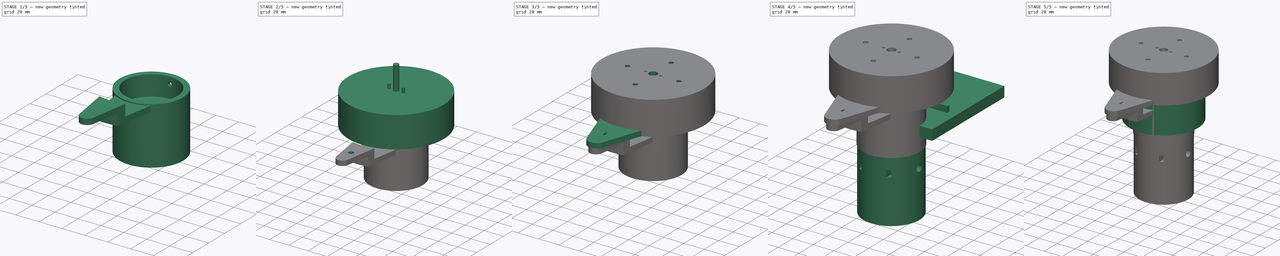
[diagram: build sequence overview — one tinted view per stage of 5, left to right]
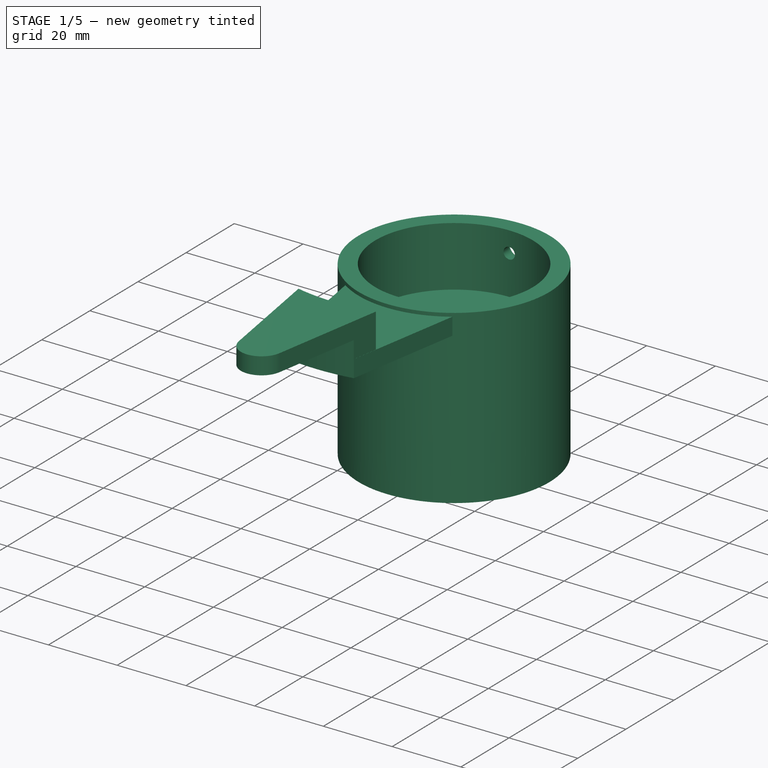
[diagram: stage 1 of 5 — iso view after this stage's code; geometry added in this stage tinted green]
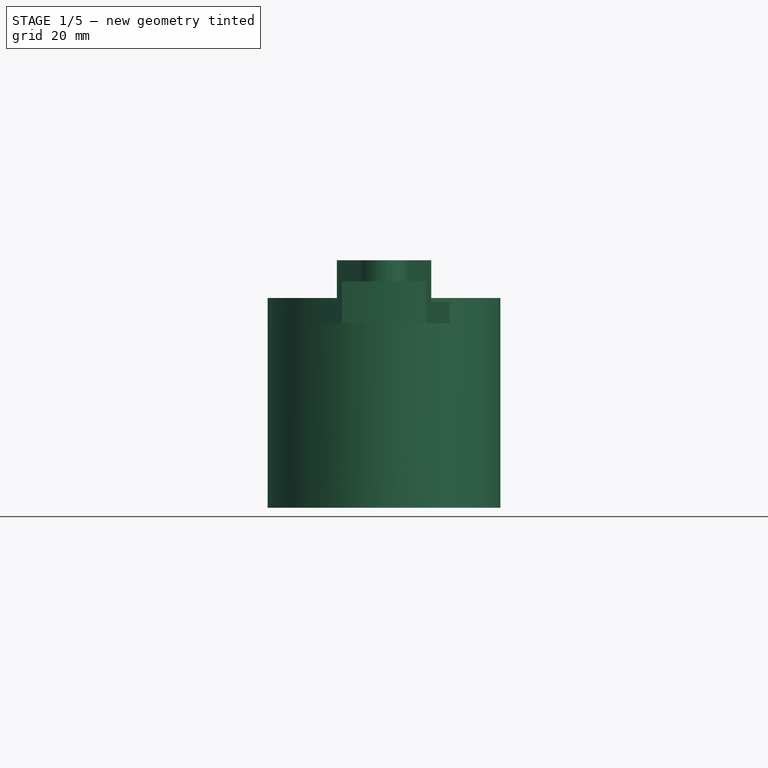
[diagram: stage 1 of 5 — front view after this stage's code; geometry added in this stage tinted green]
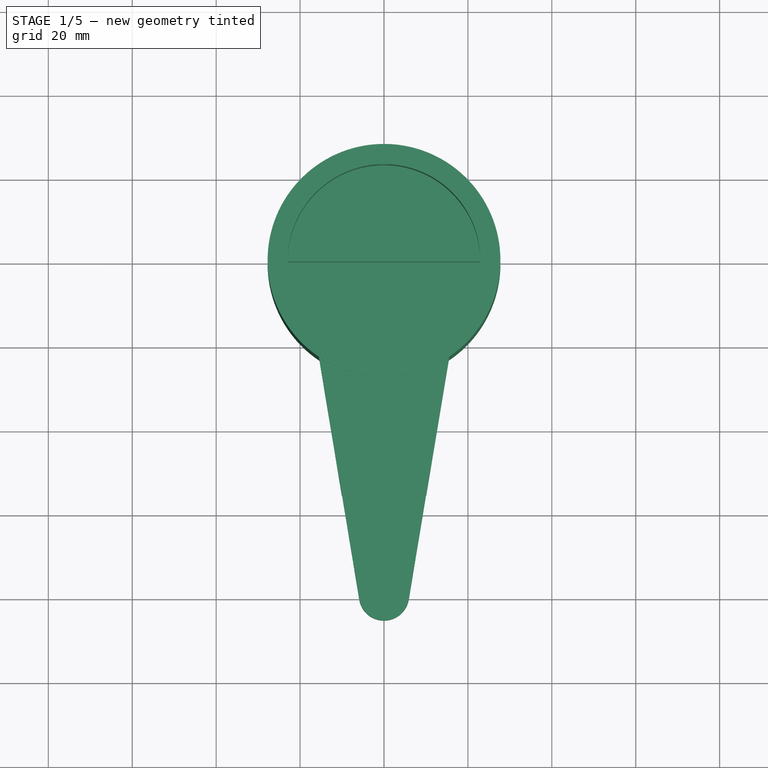
[diagram: stage 1 of 5 — top view after this stage's code; geometry added in this stage tinted green]
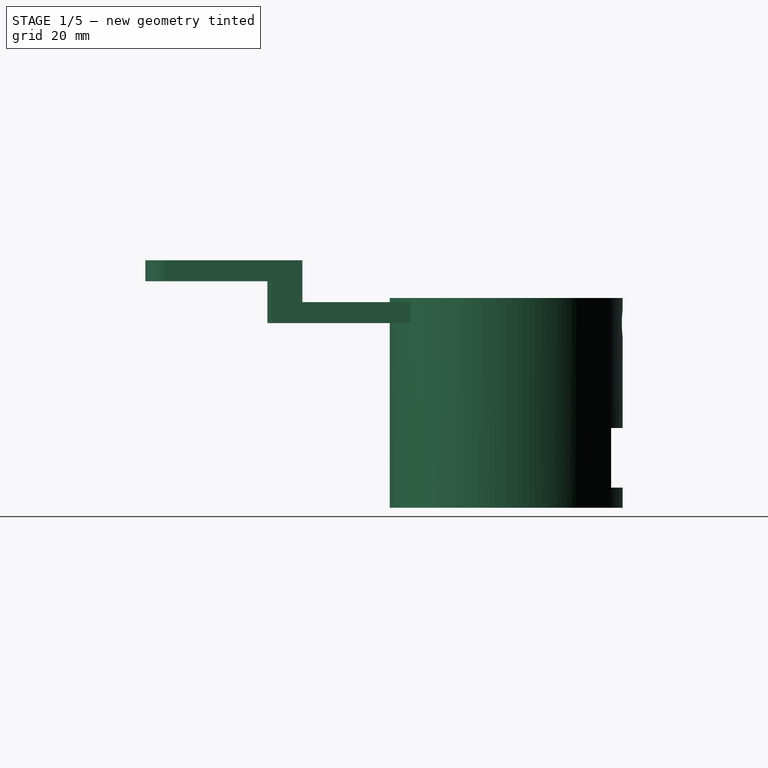
[diagram: stage 1 of 5 — right view after this stage's code; geometry added in this stage tinted green]
FCSTD DOCUMENT  (FreeCAD 0.21R33694 (Git))
Label: BoxMount
License: All rights reserved
LicenseURL: http://en.wikipedia.org/wiki/All_rights_reserved
objects: Sketcher::SketchObject×28, PartDesign::Pocket×22, Part::Cylinder×18, Part::Cut×12, Part::MultiFuse×8, Part::Box×6, PartDesign::Pad×6, PartDesign::FeatureBase×4, PartDesign::Body×4, Part::FeaturePython×3, Spreadsheet::Sheet×1, Part::RegularPolygon×1, Part::Extrusion×1, Part::MultiCommon×1
note: 139 computed .brp shape members not serialized (recipe doc carries the construction recipe); baked Part::Feature solids carry a one-line shape summary decoded from their .brp

FEATURE [PartDesign::Body] Body002  label="MountToPole"
  BaseFeature = -> Cut002
  Group = -> [BaseFeature002,Sketch006,Pad,Sketch007,Pocket007,Sketch008,Pocket008,Sketch009,Pocket009,Sketch010,Pocket010,Sketch011,Pocket011,Sketch012,Pocket012]
  Origin = -> Origin002
  Tip = -> Pocket012
FEATURE [Part::Box] Box005  label="AddCube001"
  AttacherType = Attacher::AttachEngine3D
  Height = 9.5
  Length = 80
  Placement = pos=(-40,0,-1) rot=(0,0,1;0rad)
  Width = 100
FEATURE [Part::Cylinder] Cylinder014  label="CutCylinder001"
  Angle = 360
  AttacherType = Attacher::AttachEngine3D
  FirstAngle = 0
  Height = 27
  Placement = pos=(0,0,-1) rot=(0,0,1;0rad)
  Radius = 22.95
  SecondAngle = 0
  expr: Height = <<Sheet>>.plug_height + 1 - <<Sheet>>.plug_lip - <<Sheet>>.bearing_height
  expr: Radius = <<Sheet>>.bearing_inside / 2 + 0.2
FEATURE [Part::Cut] Cut011
  Base = -> Cylinder014
  Tool = -> Box005
FEATURE [Part::Cylinder] Cylinder015
  Angle = 360
  AttacherType = Attacher::AttachEngine3D
  FirstAngle = 0
  Height = 40
  Placement = pos=(0,0,-14) rot=(0,0,1;0rad)
  Radius = 27.75
  SecondAngle = 0
  expr: .Placement.Base.z = <<Sheet>>.plug_height - <<Sheet>>.plug_lip - <<Sheet>>.bearing_height - <<Sheet>>.lower_part_height
  expr: Height = <<Sheet>>.lower_part_height
  expr: Radius = <<Sheet>>.bearing_inside / 2 + <<Sheet>>.plug_overlap
FEATURE [Part::Cylinder] Cylinder016
  Angle = 360
  AttacherType = Attacher::AttachEngine3D
  FirstAngle = 0
  Height = 50
  Placement = pos=(0,50,20) rot=(1,0,0;1.5708rad)
  Radius = 1.65
  SecondAngle = 0
FEATURE [Part::Cylinder] Cylinder017
  Angle = 360
  AttacherType = Attacher::AttachEngine3D
  FirstAngle = 0
  Height = 2.5
  Placement = pos=(0,27.75,20) rot=(1,0,0;1.5708rad)
  Radius = 3.25
  SecondAngle = 0
  expr: .Placement.Base.y = <<Sheet>>.bearing_inside / 2 + <<Sheet>>.plug_overlap
FEATURE [Part::MultiFuse] Fusion007
  Shapes = -> [Cut011,Cylinder016,Cylinder017]
FEATURE [Part::Cut] Cut010  label="lower_part001"
  Base = -> Cylinder015
  Tool = -> Fusion007
FEATURE [PartDesign::FeatureBase] BaseFeature003
  BaseFeature = -> Cut010
FEATURE [Sketcher::SketchObject] Sketch013
  FullyConstrained = true
  MapMode = 5
  Placement = pos=(0,0,-14) rot=(1,0,0;3.14159rad)
  Support = -> [BaseFeature003]
  expr: Constraints[1] = (<<Sheet>>.bearing_inside / 2 + <<Sheet>>.plug_overlap) * 2
  sketch-geometry (1):
    g0: Circle CenterX=0 CenterY=0 CenterZ=0 NormalX=0 NormalY=0 NormalZ=1 AngleXU=0 Radius=27.75
  constraints (2):
    c: Coincident(g0,g-1)
    c: Diameter(g0) = 55.5
FEATURE [PartDesign::Pad] Pad001
  BaseFeature = -> BaseFeature003
  Direction = (0,0,-1)
  Length = 10
  Length2 = 10
  Profile = -> Sketch013
  ReferenceAxis = -> Sketch013 [N_Axis]
  Type = 0
  expr: Length = 10
FEATURE [Sketcher::SketchObject] Sketch014
  FullyConstrained = true
  Placement = pos=(0,28,0) rot=(0,0.707107,0.707107;3.14159rad)
  expr: Constraints[10] = Spreadsheet.tripod_nut_width / 2
  expr: Constraints[11] = Spreadsheet.tripod_screw_length / 2 - 2.5
  expr: Constraints[8] = Spreadsheet.tripod_nut_height
  expr: Constraints[9] = Spreadsheet.tripod_nut_width
  sketch-geometry (4):
    g0: LineSegment StartX=-12 StartY=-5 StartZ=0 EndX=12 EndY=-5 EndZ=0
    g1: LineSegment StartX=12 StartY=-5 StartZ=0 EndX=12 EndY=-19.2 EndZ=0
    g2: LineSegment StartX=12 StartY=-19.2 StartZ=0 EndX=-12 EndY=-19.2 EndZ=0
    g3: LineSegment StartX=-12 StartY=-19.2 StartZ=0 EndX=-12 EndY=-5 EndZ=0
  constraints (12):
    c: Coincident(g0,g1)
    c: Coincident(g1,g2)
    c: Coincident(g2,g3)
    c: Coincident(g3,g0)
    c: Horizontal(g0)
    c: Horizontal(g2)
    c: Vertical(g1)
    c: Vertical(g3)
    c: DistanceY(g3,g3) = 14.2
    c: DistanceX(g0,g0) = 24
    c: DistanceX(g0,g-1) = 12
    c: DistanceY(g0,g-1) = 5
FEATURE [PartDesign::Pocket] Pocket013
  BaseFeature = -> Pad001
  Direction = (0,-1,2e-16)
  Length = 28
  Length2 = 5
  Profile = -> Sketch014
  ReferenceAxis = -> Sketch014 [N_Axis]
  Type = 0
  expr: Length = 28
FEATURE [Sketcher::SketchObject] Sketch015
  FullyConstrained = true
  MapMode = 5
  Placement = pos=(0,0,-24) rot=(1,0,0;3.14159rad)
  Support = -> [Pocket013]
  expr: Constraints[1] = Spreadsheet.tripod_screw_diameter
  sketch-geometry (1):
    g0: Circle CenterX=0 CenterY=0 CenterZ=0 NormalX=0 NormalY=0 NormalZ=1 AngleXU=0 Radius=8.1
  constraints (2):
    c: Coincident(g0,g-1)
    c: Diameter(g0) = 16.2
FEATURE [PartDesign::Pocket] Pocket014
  BaseFeature = -> Pocket013
  Direction = (0,0,1)
  Length = 15
  Length2 = 5
  Profile = -> Sketch015
  ReferenceAxis = -> Sketch015 [N_Axis]
  Type = 0
  expr: Length = Spreadsheet.tripod_screw_length
FEATURE [Sketcher::SketchObject] Sketch016
  AttachmentOffset = pos=(0,0,-4.7) rot=(0,0,1;0rad)
  FullyConstrained = false
  MapMode = 5
  Placement = pos=(0,0,-19.3) rot=(1,0,0;3.14159rad)
  Support = -> [Pocket014]
  sketch-geometry (7):
    g0: LineSegment StartX=0 StartY=-14.0361 StartZ=0 EndX=12.1556 EndY=-7.01803 EndZ=0
    g1: LineSegment StartX=12.1556 StartY=-7.01803 StartZ=0 EndX=12.1556 EndY=7.01803 EndZ=0
    g2: LineSegment StartX=12.1556 StartY=7.01803 StartZ=0 EndX=2.2e-15 EndY=14.0361 EndZ=0
    g3: LineSegment StartX=1.8e-15 StartY=14.0361 StartZ=0 EndX=-12.1556 EndY=7.01803 EndZ=0
    g4: LineSegment StartX=-12.1556 StartY=7.01803 StartZ=0 EndX=-12.1556 EndY=-7.01803 EndZ=0
    g5: LineSegment StartX=-12.1556 StartY=-7.01803 StartZ=0 EndX=4e-16 EndY=-14.0361 EndZ=0
    g6: Circle CenterX=0 CenterY=0 CenterZ=0 NormalX=0 NormalY=0 NormalZ=1 AngleXU=0 Radius=14.0361
  constraints (15):
    c: Coincident(g0,g1)
    c: Coincident(g1,g2)
    c: Coincident(g2,g3)
    c: Coincident(g3,g4)
    c: Coincident(g4,g5)
    c: Coincident(g5,g0)
    c: Equal(g0, g1-g5) x5
    c: PointOnObject(g0,g6)
    c: PointOnObject(g1,g6)
    c: PointOnObject(g2,g6)
    c: PointOnObject(g3,g6)
    c: PointOnObject(g4,g6)
    c: PointOnObject(g5,g6)
    c: Coincident(g6,g-1)
    c: PointOnObject(g5,g-2)
FEATURE [PartDesign::Pocket] Pocket015
  BaseFeature = -> Pocket014
  Direction = (0,0,1)
  Length = 14.4
  Length2 = 5
  Profile = -> Sketch016
  ReferenceAxis = -> Sketch016 [N_Axis]
  Type = 0
  expr: Length = Spreadsheet.tripod_nut_height + 0.2
FEATURE [PartDesign::Body] Body  label="MountToCase"
  BaseFeature = -> Cut009
  Group = -> [BaseFeature,Sketch,Pocket,Sketch001,Pocket001,Sketch002,Pocket006,Sketch017,Pad002,Sketch018,Pocket016]
  Origin = -> Origin
  Tip = -> Pocket016
FEATURE [Sketcher::SketchObject] Sketch019
  AttachmentOffset = pos=(0,0,-1) rot=(0,0,1;0rad)
  FullyConstrained = false
  MapMode = 5
  Placement = pos=(0,0,25) rot=(0,0,1;0rad)
  Support = -> [Pocket015]
  sketch-geometry (4):
    g0: ArcOfCircle CenterX=0 CenterY=0 CenterZ=0 NormalX=0 NormalY=0 NormalZ=1 AngleXU=0 Radius=27.6386 StartAngle=4.11469 EndAngle=5.31214
    g1: LineSegment StartX=15.6003 StartY=-22.8149 StartZ=0 EndX=5.91858 EndY=-80.9851 EndZ=0
    g2: LineSegment StartX=-15.5533 StartY=-22.847 StartZ=0 EndX=-5.91927 EndY=-80.981 EndZ=0
    g3: ArcOfCircle CenterX=0 CenterY=-80 CenterZ=0 NormalX=0 NormalY=0 NormalZ=1 AngleXU=0 Radius=6 StartAngle=3.30582 EndAngle=6.11826
  constraints (8):
    c: Coincident(g0,g-1)
    c: Coincident(g1,g0)
    c: Coincident(g2,g0)
    c: Tangent(g1,g3) = 1.5708
    c: Tangent(g2,g3) = -1.5708
    c: Radius(g3) = 6
    c: DistanceX(g3,g0) = 0
    c: DistanceY(g3,g0) = 80
FEATURE [PartDesign::Pad] Pad003
  BaseFeature = -> Pocket015
  Direction = (0,0,1)
  Length = 5
  Length2 = 10
  Profile = -> Sketch019
  ReferenceAxis = -> Sketch019 [N_Axis]
  Reversed = true
  Type = 0
FEATURE [Sketcher::SketchObject] Sketch020
  FullyConstrained = false
  MapMode = 5
  Placement = pos=(0,0,25) rot=(0,0,1;0rad)
  Support = -> [Pad003]
  sketch-geometry (4):
    g0: ArcOfCircle CenterX=0 CenterY=-80 CenterZ=0 NormalX=0 NormalY=0 NormalZ=1 AngleXU=0 Radius=6 StartAngle=3.32545 EndAngle=6.12317
    g1: ArcOfCircle CenterX=0 CenterY=0 CenterZ=0 NormalX=0 NormalY=0 NormalZ=1 AngleXU=0 Radius=49.8835 StartAngle=4.48521 EndAngle=4.94033
    g2: LineSegment StartX=11.2725 StartY=-48.5931 StartZ=0 EndX=5.92335 EndY=-80.956 EndZ=0
    g3: LineSegment StartX=-11.235 StartY=-48.6018 StartZ=0 EndX=-5.89887 EndY=-81.097 EndZ=0
  constraints (8):
    c: PointOnObject(g0,g-2)
    c: DistanceY(g0,g-1) = 80
    c: Radius(g0) = 6
    c: Coincident(g1,g-1)
    c: Coincident(g2,g1)
    c: Coincident(g2,g0)
    c: Coincident(g3,g1)
    c: Coincident(g3,g0)
FEATURE [PartDesign::Pad] Pad004
  BaseFeature = -> Pad003
  Direction = (0,0,1)
  Length = 10
  Length2 = 10
  Profile = -> Sketch020
  ReferenceAxis = -> Sketch020 [N_Axis]
  Type = 0
FEATURE [Sketcher::SketchObject] Sketch021
  FullyConstrained = false
  MapMode = 5
  Placement = pos=(0,0,20) rot=(1,0,0;3.14159rad)
  Support = -> [Pad004]
  sketch-geometry (4):
    g0: ArcOfCircle CenterX=0 CenterY=0 CenterZ=0 NormalX=0 NormalY=0 NormalZ=1 AngleXU=0 Radius=56.9272 StartAngle=1.25968 EndAngle=1.88829
    g1: LineSegment StartX=-17.7719 StartY=54.082 StartZ=0 EndX=-17.7719 EndY=91.2766 EndZ=0
    g2: LineSegment StartX=17.4267 StartY=54.1943 StartZ=0 EndX=17.4267 EndY=91.2766 EndZ=0
    g3: LineSegment StartX=17.4267 StartY=91.2766 StartZ=0 EndX=-17.7719 EndY=91.2766 EndZ=0
  constraints (8):
    c: Coincident(g0,g-1)
    c: Coincident(g1,g0)
    c: Vertical(g1)
    c: Coincident(g2,g0)
    c: Vertical(g2)
    c: Coincident(g3,g2)
    c: Coincident(g3,g1)
    c: Horizontal(g3)
FEATURE [PartDesign::Pocket] Pocket017
  BaseFeature = -> Pad004
  Direction = (0,0,1)
  Length = 10
  Length2 = 5
  Profile = -> Sketch021
  ReferenceAxis = -> Sketch021 [N_Axis]
  Type = 0
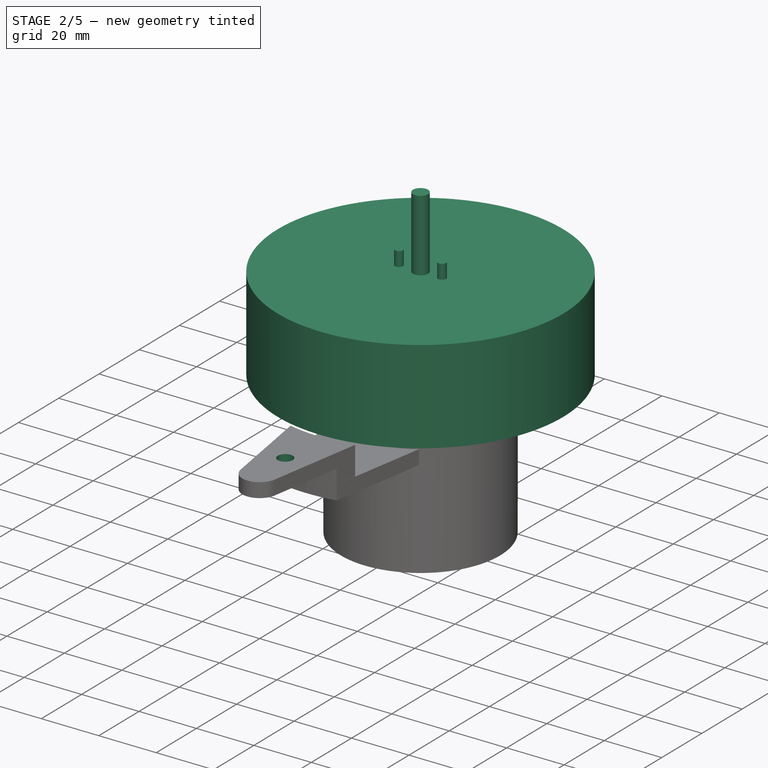
[diagram: stage 2 of 5 — iso view after this stage's code; geometry added in this stage tinted green]
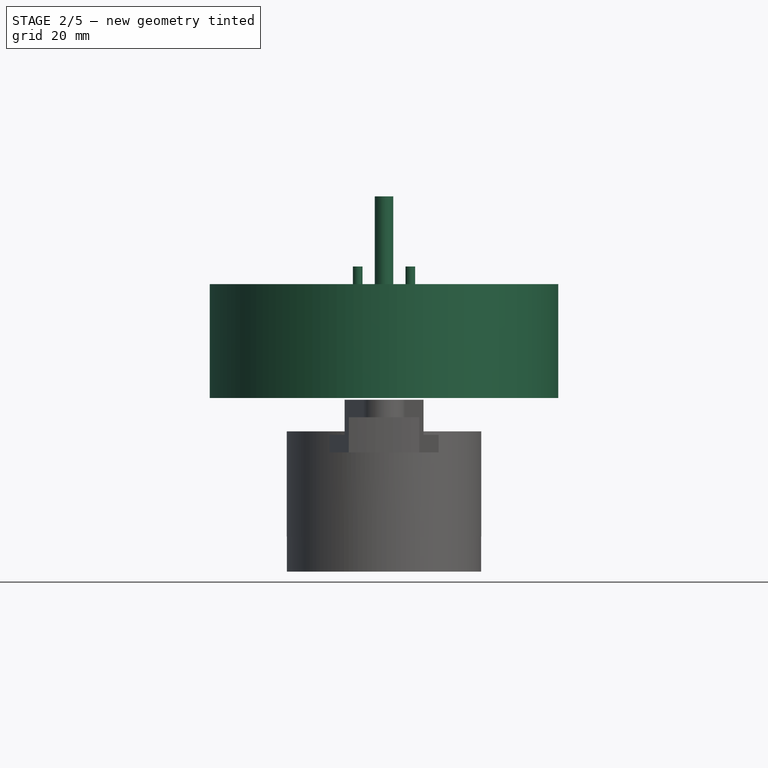
[diagram: stage 2 of 5 — front view after this stage's code; geometry added in this stage tinted green]
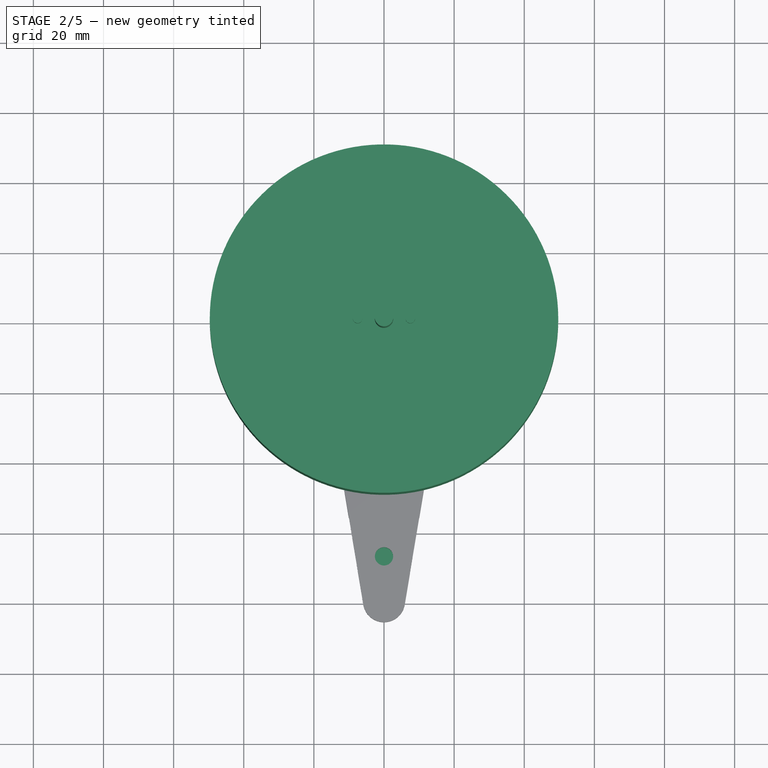
[diagram: stage 2 of 5 — top view after this stage's code; geometry added in this stage tinted green]
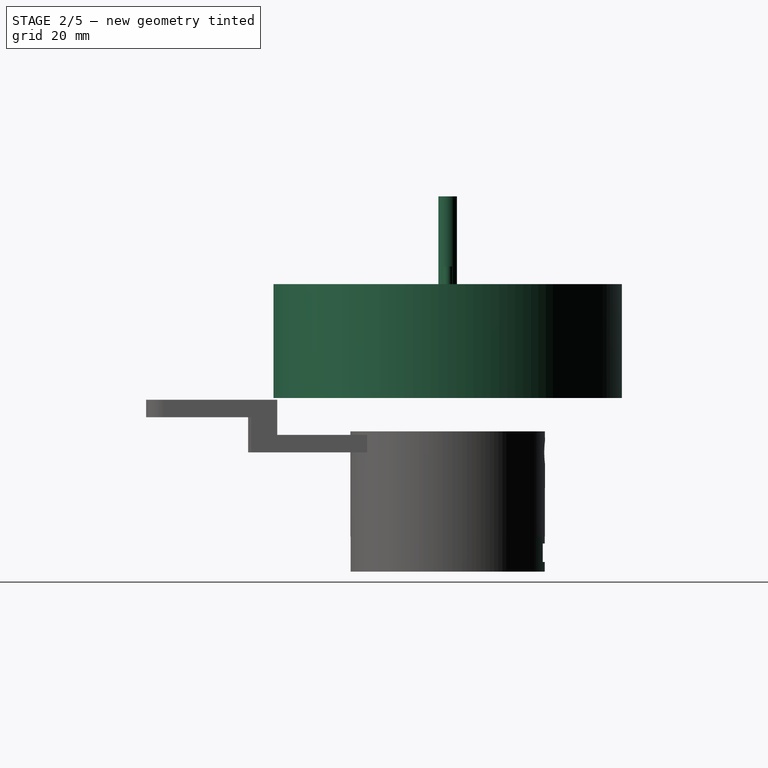
[diagram: stage 2 of 5 — right view after this stage's code; geometry added in this stage tinted green]
FEATURE [Part::Cylinder] Cylinder007
  Angle = 360
  AttacherType = Attacher::AttachEngine3D
  FirstAngle = 0
  Height = 63
  Radius = 37.7
  SecondAngle = 0
  expr: Height = <<Sheet>>.base_height
  expr: Radius = <<Sheet>>.bearing_outside / 2 - 5
FEATURE [Part::Cylinder] Cylinder009
  Angle = 360
  AttacherType = Attacher::AttachEngine3D
  FirstAngle = 0
  Height = 30
  Placement = pos=(0,0,63) rot=(0,0,1;0rad)
  Radius = 2.65
  SecondAngle = 0
  expr: .Placement.Base.z = <<Sheet>>.base_height
  expr: Radius = <<Sheet>>.motor_shaft_diameter / 2 + 0.5
FEATURE [Part::Cylinder] Cylinder010
  Angle = 360
  AttacherType = Attacher::AttachEngine3D
  FirstAngle = 0
  Height = 10
  Radius = 1.375
  SecondAngle = 0
  expr: Radius = 2.75 / 2
FEATURE [Part::Cylinder] Cylinder011
  Angle = 360
  AttacherType = Attacher::AttachEngine3D
  FirstAngle = 0
  Height = 2.1
  Radius = 2.6
  SecondAngle = 0
  expr: Radius = 2.6
FEATURE [Part::MultiFuse] Fusion004
  Placement = pos=(0,0,63) rot=(0,0,1;0rad)
  Shapes = -> [Cylinder011,Cylinder010]
  expr: .Placement.Base.z = <<Sheet>>.base_height
FEATURE [Part::FeaturePython] Array002  # Draft array (typed FeaturePython)
  AlwaysSyncPlacement = false
  Angle = 360
  ArrayType = 0
  Axis = (0,0,1)
  Base = -> Fusion004
  Center = (0,0,0)
  Count = 2
  ExpandArray = false
  Fuse = false
  IntervalAxis = (0,0,0)
  IntervalX = (15,0,0)
  IntervalY = (0,0,0)
  IntervalZ = (0,0,0)
  NumberCircles = 3
  NumberPolar = 5
  NumberX = 2
  NumberY = 1
  NumberZ = 1
  Placement = pos=(-7.5,0,0) rot=(0,0,1;0rad)
  PlacementList = 2 placements: [(0,0,63),(15,0,63)]
  RadialDistance = 50
  ScaleList = (2) [(1,1,1),(1,1,1)]
  Symmetry = 1
  TangentialDistance = 25
FEATURE [Part::Cylinder] Cylinder012
  Angle = 360
  AttacherType = Attacher::AttachEngine3D
  FirstAngle = 0
  Height = 32.5
  Placement = pos=(0,0,35.5) rot=(0,0,1;0rad)
  Radius = 49.7
  SecondAngle = 0
  expr: .Placement.Base.z = <<Sheet>>.plug_height - <<Sheet>>.plug_lip - <<Sheet>>.bearing_height / 2
  expr: Height = <<Sheet>>.plug_lip + <<Sheet>>.plug_to_base_gap + <<Sheet>>.bearing_height / 2 + <<Sheet>>.base_thickness
  expr: Radius = <<Sheet>>.bearing_outside / 2 + 7
FEATURE [Part::Cylinder] Cylinder013
  Angle = 360
  AttacherType = Attacher::AttachEngine3D
  FirstAngle = 0
  Height = 45
  Radius = 42.7
  SecondAngle = 0
  expr: Height = <<Sheet>>.base_height - <<Sheet>>.plug_to_base_gap - <<Sheet>>.plug_lip
  expr: Radius = <<Sheet>>.bearing_outside / 2
FEATURE [Part::MultiFuse] Fusion006
  Shapes = -> [Cylinder013,Cylinder007]
FEATURE [Part::Cut] Cut008
  Base = -> Cylinder012
  Tool = -> Fusion006
FEATURE [Sketcher::SketchObject] Sketch022
  FullyConstrained = true
  MapMode = 5
  Placement = pos=(0,0,35) rot=(0,0,1;0rad)
  Support = -> [Pocket017]
  expr: Constraints[1] = <<Sheet>>.hall_effect_distance + <<Sheet>>.hall_effect_x / 2
  expr: Constraints[2] = <<Sheet>>.he_magnet_diameter
  sketch-geometry (1):
    g0: Circle CenterX=0 CenterY=-67.25 CenterZ=0 NormalX=0 NormalY=0 NormalZ=1 AngleXU=0 Radius=2.6
  constraints (3):
    c: PointOnObject(g0,g-2)
    c: DistanceY(g0,g-1) = 67.25
    c: Diameter(g0) = 5.2
FEATURE [PartDesign::Pocket] Pocket018
  BaseFeature = -> Pocket017
  Direction = (0,0,-1)
  Length = 4.2
  Length2 = 5
  Profile = -> Sketch022
  ReferenceAxis = -> Sketch022 [N_Axis]
  Type = 0
  expr: Length = <<Sheet>>.he_magnet_height
FEATURE [Sketcher::SketchObject] Sketch023
  FullyConstrained = false
  MapMode = 5
  Placement = pos=(0,0,-24) rot=(1,0,0;3.14159rad)
  Support = -> [Pocket018]
  sketch-geometry (4):
    g0: LineSegment StartX=-57.1664 StartY=48.8403 StartZ=0 EndX=51.1268 EndY=48.8403 EndZ=0
    g1: LineSegment StartX=51.1268 StartY=48.8403 StartZ=0 EndX=51.1268 EndY=-38.2922 EndZ=0
    g2: LineSegment StartX=51.1268 StartY=-38.2922 StartZ=0 EndX=-57.1664 EndY=-38.2922 EndZ=0
    g3: LineSegment StartX=-57.1664 StartY=-38.2922 StartZ=0 EndX=-57.1664 EndY=48.8403 EndZ=0
  constraints (8):
    c: Coincident(g0,g1)
    c: Coincident(g1,g2)
    c: Coincident(g2,g3)
    c: Coincident(g3,g0)
    c: Horizontal(g0)
    c: Horizontal(g2)
    c: Vertical(g1)
    c: Vertical(g3)
FEATURE [PartDesign::Pocket] Pocket019
  BaseFeature = -> Pocket018
  Direction = (0,0,1)
  Length = 20
  Length2 = 5
  Profile = -> Sketch023
  ReferenceAxis = -> Sketch023 [N_Axis]
  Type = 0
FEATURE [Sketcher::SketchObject] Sketch024
  FullyConstrained = false
  MapMode = 5
  Placement = pos=(0,0,-4) rot=(1,0,0;3.14159rad)
  Support = -> [Pocket019]
  sketch-geometry (1):
    g0: Circle CenterX=0 CenterY=0 CenterZ=0 NormalX=0 NormalY=0 NormalZ=1 AngleXU=0 Radius=27.6997
  constraints (1):
    c: Coincident(g0,g-1)
FEATURE [PartDesign::Pad] Pad005
  BaseFeature = -> Pocket019
  Direction = (0,0,-1)
  Length = 10
  Length2 = 10
  Profile = -> Sketch024
  ReferenceAxis = -> Sketch024 [N_Axis]
  Type = 0
  expr: Length = 10 mm
FEATURE [Sketcher::SketchObject] Sketch025
  AttachmentOffset = pos=(0,0,-33) rot=(0,0,1;0rad)
  FullyConstrained = false
  MapMode = 5
  Placement = pos=(0,33,7.3e-15) rot=(1,0,0;1.5708rad)
  Support = -> [XZ_Plane003]
  expr: Constraints[8] = 11.3
  sketch-geometry (4):
    g0: LineSegment StartX=-5.65 StartY=-5.97707 StartZ=0 EndX=5.65 EndY=-5.97707 EndZ=0
    g1: LineSegment StartX=5.65 StartY=-5.97707 StartZ=0 EndX=5.65 EndY=-11.2771 EndZ=0
    g2: LineSegment StartX=5.65 StartY=-11.2771 StartZ=0 EndX=-5.65 EndY=-11.2771 EndZ=0
    g3: LineSegment StartX=-5.65 StartY=-11.2771 StartZ=0 EndX=-5.65 EndY=-5.97707 EndZ=0
  constraints (11):
    c: Coincident(g0,g1)
    c: Coincident(g1,g2)
    c: Coincident(g2,g3)
    c: Coincident(g3,g0)
    c: Horizontal(g0)
    c: Horizontal(g2)
    c: Vertical(g1)
    c: Vertical(g3)
    c: DistanceX(g0,g0) = 11.3
    c: DistanceY(g3,g3) = 5.3
    c: DistanceX(g0,g-1) = 5.65
FEATURE [PartDesign::Pocket] Pocket020
  BaseFeature = -> Pad005
  Direction = (0,1,2e-16)
  Length = 33
  Length2 = 5
  Profile = -> Sketch025
  ReferenceAxis = -> Sketch025 [N_Axis]
  Reversed = true
  Type = 0
FEATURE [Sketcher::SketchObject] Sketch026
  AttachmentOffset = pos=(0,0,-6) rot=(0,0,1;0rad)
  FullyConstrained = true
  MapMode = 5
  Placement = pos=(0,0,-6) rot=(0,0,1;0rad)
  Support = -> [XY_Plane003]
  sketch-geometry (7):
    g0: LineSegment StartX=5.65 StartY=-3.26203 StartZ=0 EndX=5.65 EndY=3.26203 EndZ=0
    g1: LineSegment StartX=5.65 StartY=3.26203 StartZ=0 EndX=-3e-16 EndY=6.52406 EndZ=0
    g2: LineSegment StartX=-3e-16 StartY=6.52406 StartZ=0 EndX=-5.65 EndY=3.26203 EndZ=0
    g3: LineSegment StartX=-5.65 StartY=3.26203 StartZ=0 EndX=-5.65 EndY=-3.26203 EndZ=0
    g4: LineSegment StartX=-5.65 StartY=-3.26203 StartZ=0 EndX=8e-16 EndY=-6.52406 EndZ=0
    g5: LineSegment StartX=8e-16 StartY=-6.52406 StartZ=0 EndX=5.65 EndY=-3.26203 EndZ=0
    g6: Circle CenterX=0 CenterY=0 CenterZ=0 NormalX=0 NormalY=0 NormalZ=1 AngleXU=0 Radius=6.52406
  constraints (16):
    c: Coincident(g0,g1)
    c: Coincident(g1,g2)
    c: Coincident(g2,g3)
    c: Coincident(g3,g4)
    c: Coincident(g4,g5)
    c: Coincident(g5,g0)
    c: Equal(g0, g1-g5) x5
    c: PointOnObject(g0,g6)
    c: PointOnObject(g1,g6)
    c: PointOnObject(g2,g6)
    c: PointOnObject(g3,g6)
    c: PointOnObject(g4,g6)
    c: PointOnObject(g5,g6)
    c: Coincident(g6,g-1)
    c: DistanceX(g6,g1) = 0
    c: DistanceX(g2,g0) = 11.3
FEATURE [PartDesign::Pocket] Pocket021
  BaseFeature = -> Pocket020
  Direction = (0,0,-1)
  Length = 5.3
  Length2 = 5
  Profile = -> Sketch026
  ReferenceAxis = -> Sketch026 [N_Axis]
  Type = 0
  expr: Length = 5.3
FEATURE [Sketcher::SketchObject] Sketch027
  FullyConstrained = false
  MapMode = 5
  Placement = pos=(0,0,-14) rot=(1,0,0;3.14159rad)
  Support = -> [Pocket021]
  sketch-geometry (1):
    g0: Circle CenterX=0 CenterY=0 CenterZ=0 NormalX=0 NormalY=0 NormalZ=1 AngleXU=0 Radius=4.25332
  constraints (1):
    c: Coincident(g0,g-1)
FEATURE [PartDesign::Pocket] Pocket022
  BaseFeature = -> Pocket021
  Direction = (0,0,1)
  Length = 8
  Length2 = 5
  Profile = -> Sketch027
  ReferenceAxis = -> Sketch027 [N_Axis]
  Type = 0
FEATURE [PartDesign::Body] Body003  label="MountToTripod"
  BaseFeature = -> Cut010
  Group = -> [BaseFeature003,Sketch013,Pad001,Sketch014,Pocket013,Sketch015,Pocket014,Sketch016,Pocket015,Sketch019,Pad003,Sketch020,Pad004,Sketch021,Pocket017,Sketch022,Pocket018,Sketch023,Pocket019,Sketch024,Pad005,Sketch025,Pocket020,Sketch026,Pocket021,Sketch027,Pocket022]
  Origin = -> Origin003
  Tip = -> Pocket022
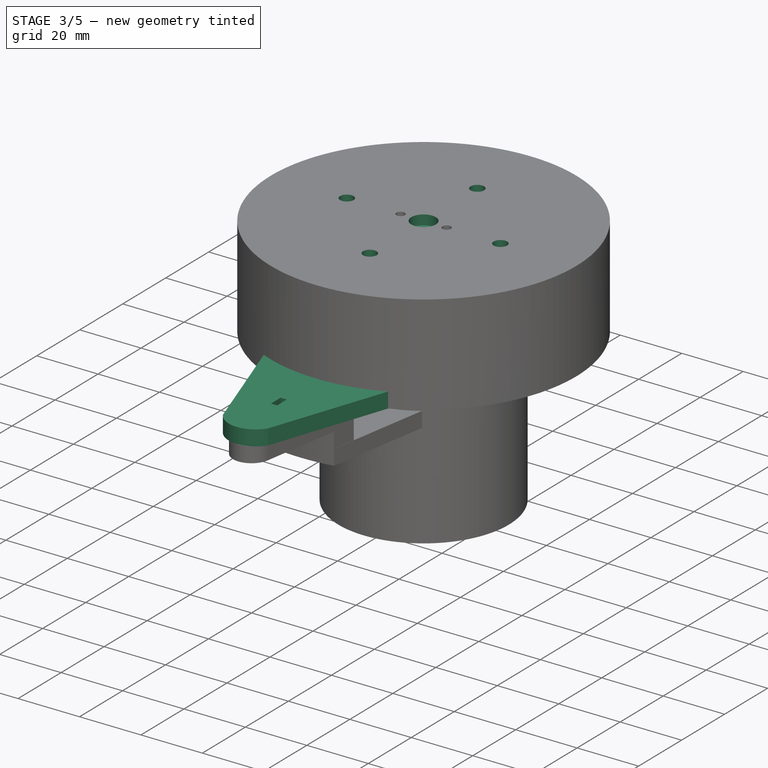
[diagram: stage 3 of 5 — iso view after this stage's code; geometry added in this stage tinted green]
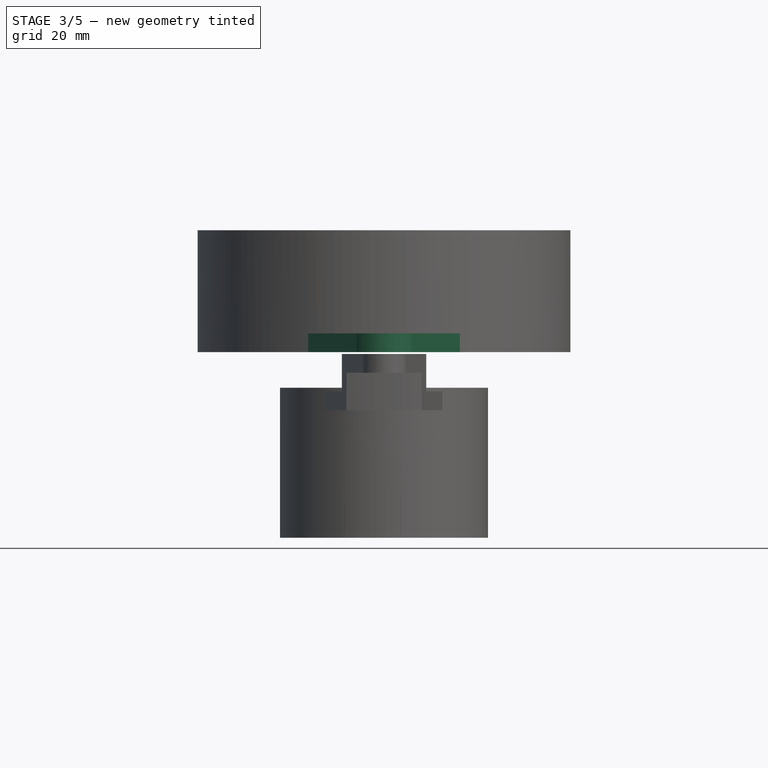
[diagram: stage 3 of 5 — front view after this stage's code; geometry added in this stage tinted green]
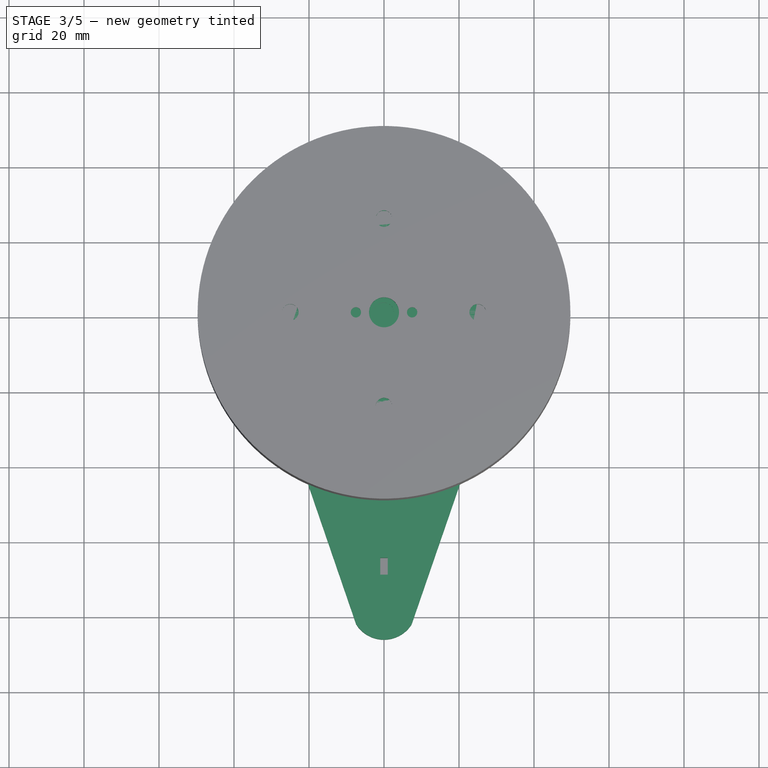
[diagram: stage 3 of 5 — top view after this stage's code; geometry added in this stage tinted green]
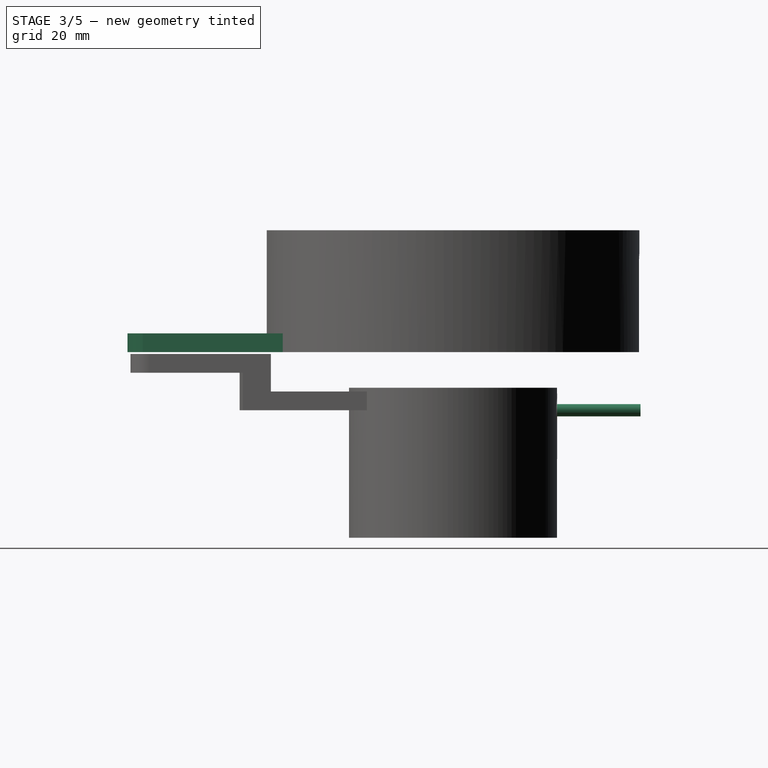
[diagram: stage 3 of 5 — right view after this stage's code; geometry added in this stage tinted green]
FEATURE [Part::Cylinder] Cylinder003  label="CutCylinder"
  Angle = 360
  AttacherType = Attacher::AttachEngine3D
  FirstAngle = 0
  Height = 27
  Placement = pos=(0,0,-1) rot=(0,0,1;0rad)
  Radius = 22.95
  SecondAngle = 0
  expr: Height = <<Sheet>>.plug_height + 1 - <<Sheet>>.plug_lip - <<Sheet>>.bearing_height
  expr: Radius = <<Sheet>>.bearing_inside / 2 + 0.2
FEATURE [Part::Cylinder] Cylinder004
  Angle = 360
  AttacherType = Attacher::AttachEngine3D
  FirstAngle = 0
  Height = 40
  Placement = pos=(0,0,-14) rot=(0,0,1;0rad)
  Radius = 27.75
  SecondAngle = 0
  expr: .Placement.Base.z = <<Sheet>>.plug_height - <<Sheet>>.plug_lip - <<Sheet>>.bearing_height - <<Sheet>>.lower_part_height
  expr: Height = <<Sheet>>.lower_part_height
  expr: Radius = <<Sheet>>.bearing_inside / 2 + <<Sheet>>.plug_overlap
FEATURE [Part::Box] Box001  label="AddCube"
  AttacherType = Attacher::AttachEngine3D
  Height = 9.5
  Length = 80
  Placement = pos=(-40,0,-1) rot=(0,0,1;0rad)
  Width = 100
FEATURE [Part::Cut] Cut004
  Base = -> Cylinder003
  Tool = -> Box001
FEATURE [Part::Cylinder] Cylinder005  label="Cylinder"
  Angle = 360
  AttacherType = Attacher::AttachEngine3D
  FirstAngle = 0
  Height = 50
  Placement = pos=(0,50,20) rot=(1,0,0;1.5708rad)
  Radius = 1.65
  SecondAngle = 0
FEATURE [Part::Cylinder] Cylinder006
  Angle = 360
  AttacherType = Attacher::AttachEngine3D
  FirstAngle = 0
  Height = 2.5
  Placement = pos=(0,27.75,20) rot=(1,0,0;1.5708rad)
  Radius = 3.25
  SecondAngle = 0
  expr: .Placement.Base.y = <<Sheet>>.bearing_inside / 2 + <<Sheet>>.plug_overlap
FEATURE [Part::MultiFuse] Fusion003
  Shapes = -> [Cut004,Cylinder005,Cylinder006]
FEATURE [Part::Cylinder] Cylinder008
  Angle = 360
  AttacherType = Attacher::AttachEngine3D
  FirstAngle = 0
  Height = 3.2
  Placement = pos=(0,0,64.8) rot=(0,0,1;0rad)
  Radius = 4
  SecondAngle = 0
  expr: .Placement.Base.z = <<Sheet>>.base_height + <<Sheet>>.base_thickness - <<Sheet>>.motor_lip_height
  expr: Height = <<Sheet>>.motor_lip_height
  expr: Radius = <<Sheet>>.motor_lip_diameter / 2 + 0.5
FEATURE [Part::MultiFuse] Fusion005
  Shapes = -> [Array002,Cylinder009,Cylinder008]
FEATURE [Part::Cut] Cut009  label="base"
  Base = -> Cut008
  Tool = -> Fusion005
FEATURE [Sketcher::SketchObject] Sketch
  FullyConstrained = true
  MapMode = 5
  Placement = pos=(0,0,68) rot=(0,0,1;0rad)
  Support = -> [Cut009]
  expr: Constraints[0] = Spreadsheet.case_mounting_screw_size
  expr: Constraints[1] = Spreadsheet.case_mounting_screw_size
  expr: Constraints[2] = Spreadsheet.case_mounting_screw_size
  expr: Constraints[3] = Spreadsheet.case_mounting_screw_size
  expr: Constraints[6] = Spreadsheet.case_mounting_screw_distance
  expr: Constraints[7] = Spreadsheet.case_mounting_screw_distance
  expr: Constraints[8] = Spreadsheet.case_mounting_screw_distance
  expr: Constraints[9] = Spreadsheet.case_mounting_screw_distance
  sketch-geometry (4):
    g0: Circle CenterX=0 CenterY=25 CenterZ=0 NormalX=0 NormalY=0 NormalZ=1 AngleXU=0 Radius=2.2
    g1: Circle CenterX=25 CenterY=0 CenterZ=0 NormalX=0 NormalY=0 NormalZ=1 AngleXU=0 Radius=2.2
    g2: Circle CenterX=0 CenterY=-25 CenterZ=0 NormalX=0 NormalY=0 NormalZ=1 AngleXU=0 Radius=2.2
    g3: Circle CenterX=-25 CenterY=0 CenterZ=0 NormalX=0 NormalY=0 NormalZ=1 AngleXU=0 Radius=2.2
  constraints (12):
    c: Diameter(g3) = 4.4
    c: Diameter(g2) = 4.4
    c: Diameter(g0) = 4.4
    c: Diameter(g1) = 4.4
    c: DistanceX(g2,g-1) = 0
    c: DistanceX(g-1,g0) = 0
    c: DistanceX(g3,g-1) = 25
    c: DistanceX(g-1,g1) = 25
    c: DistanceY(g-1,g0) = 25
    c: DistanceY(g2,g-1) = 25
    c: DistanceY(g-1,g3) = 0
    c: DistanceY(g-1,g1) = 0
FEATURE [PartDesign::FeatureBase] BaseFeature
  BaseFeature = -> Cut009
FEATURE [PartDesign::Pocket] Pocket
  BaseFeature = -> BaseFeature
  Direction = (0,0,-1)
  Length = 5
  Length2 = 5
  Profile = -> Sketch
  ReferenceAxis = -> Sketch [N_Axis]
  Type = 0
FEATURE [Sketcher::SketchObject] Sketch001
  FullyConstrained = true
  MapMode = 5
  Placement = pos=(0,0,63) rot=(1,0,0;3.14159rad)
  Support = -> [Pocket]
  expr: Constraints[0] = Spreadsheet.case_mounting_screw_size * 2
  expr: Constraints[4] = Spreadsheet.case_mounting_screw_distance
  expr: Constraints[5] = Spreadsheet.case_mounting_screw_distance
  expr: Constraints[8] = Spreadsheet.case_mounting_screw_distance
  expr: Constraints[9] = Spreadsheet.case_mounting_screw_distance
  sketch-geometry (4):
    g0: Circle CenterX=-25 CenterY=0 CenterZ=0 NormalX=0 NormalY=0 NormalZ=1 AngleXU=0 Radius=4.4
    g1: Circle CenterX=0 CenterY=25 CenterZ=0 NormalX=0 NormalY=0 NormalZ=1 AngleXU=0 Radius=4
    g2: Circle CenterX=25 CenterY=0 CenterZ=0 NormalX=0 NormalY=0 NormalZ=1 AngleXU=0 Radius=4
    g3: Circle CenterX=0 CenterY=-25 CenterZ=0 NormalX=0 NormalY=0 NormalZ=1 AngleXU=0 Radius=4
  constraints (12):
    c: Diameter(g0) = 8.8
    c: Diameter(g1) = 8
    c: Diameter(g2) = 8
    c: Diameter(g3) = 8
    c: DistanceX(g0,g-1) = 25
    c: DistanceX(g-1,g2) = 25
    c: DistanceX(g-1,g1) = 0
    c: DistanceX(g-1,g3) = 0
    c: DistanceY(g-1,g1) = 25
    c: DistanceY(g3,g-1) = 25
    c: DistanceY(g-1,g0) = 0
    c: DistanceY(g-1,g2) = 0
FEATURE [PartDesign::Pocket] Pocket001
  BaseFeature = -> Pocket
  Direction = (0,0,1)
  Length = 2
  Length2 = 5
  Profile = -> Sketch001
  ReferenceAxis = -> Sketch001 [N_Axis]
  Type = 0
  expr: Length = 2
FEATURE [PartDesign::Body] Body001  label="Body"
  BaseFeature = -> Cut005
  Group = -> [BaseFeature001,Sketch003,Pocket003,Sketch004,Pocket004,Sketch005,Pocket005]
  Origin = -> Origin001
  Tip = -> Pocket005
FEATURE [PartDesign::Pocket] Pocket006
  BaseFeature = -> Pocket001
  Direction = (0,1,2e-16)
  Length = 25
  Length2 = 5
  Profile = -> Sketch002
  ReferenceAxis = -> Sketch002 [N_Axis]
  Reversed = true
  Type = 0
FEATURE [Sketcher::SketchObject] Sketch017
  FullyConstrained = false
  MapMode = 5
  Placement = pos=(0,0,35.5) rot=(1,0,0;3.14159rad)
  Support = -> [Pocket006]
  sketch-geometry (4):
    g0: ArcOfCircle CenterX=0 CenterY=0 CenterZ=0 NormalX=0 NormalY=0 NormalZ=1 AngleXU=0 Radius=49.6997 StartAngle=1.15156 EndAngle=1.99025
    g1: LineSegment StartX=-7.40759 StartY=82.7524 StartZ=0 EndX=-20.2407 EndY=45.3914 EndZ=0
    g2: LineSegment StartX=7.35862 StartY=82.7568 StartZ=0 EndX=20.2311 EndY=45.3957 EndZ=0
    g3: ArcOfCircle CenterX=-0.023113 CenterY=78.0809 CenterZ=0 NormalX=0 NormalY=0 NormalZ=1 AngleXU=0 Radius=8.73807 StartAngle=0.564645 EndAngle=2.57753
  constraints (5):
    c: Coincident(g0,g-1)
    c: Coincident(g1,g0)
    c: Coincident(g2,g0)
    c: Coincident(g3,g1)
    c: Coincident(g3,g2)
FEATURE [PartDesign::Pad] Pad002
  BaseFeature = -> Pocket006
  Direction = (0,0,-1)
  Length = 5
  Length2 = 10
  Profile = -> Sketch017
  ReferenceAxis = -> Sketch017 [N_Axis]
  Reversed = true
  Type = 0
FEATURE [Sketcher::SketchObject] Sketch018
  FullyConstrained = true
  MapMode = 5
  Placement = pos=(0,0,35.5) rot=(1,0,0;3.14159rad)
  Support = -> [Pad002]
  expr: Constraints[10] = <<Sheet>>.hall_effect_y / 2
  expr: Constraints[11] = <<Sheet>>.hall_effect_distance
  expr: Constraints[8] = <<Sheet>>.hall_effect_y
  expr: Constraints[9] = <<Sheet>>.hall_effect_x
  sketch-geometry (4):
    g0: LineSegment StartX=-1 StartY=69.5 StartZ=0 EndX=1 EndY=69.5 EndZ=0
    g1: LineSegment StartX=1 StartY=69.5 StartZ=0 EndX=1 EndY=65 EndZ=0
    g2: LineSegment StartX=1 StartY=65 StartZ=0 EndX=-1 EndY=65 EndZ=0
    g3: LineSegment StartX=-1 StartY=65 StartZ=0 EndX=-1 EndY=69.5 EndZ=0
  constraints (12):
    c: Coincident(g0,g1)
    c: Coincident(g1,g2)
    c: Coincident(g2,g3)
    c: Coincident(g3,g0)
    c: Horizontal(g0)
    c: Horizontal(g2)
    c: Vertical(g1)
    c: Vertical(g3)
    c: DistanceX(g0,g0) = 2
    c: DistanceY(g3,g3) = 4.5
    c: DistanceX(g2,g-1) = 1
    c: DistanceY(g-1,g2) = 65
FEATURE [PartDesign::Pocket] Pocket016
  BaseFeature = -> Pad002
  Direction = (0,0,1)
  Length = 5
  Length2 = 5
  Profile = -> Sketch018
  ReferenceAxis = -> Sketch018 [N_Axis]
  Type = 0
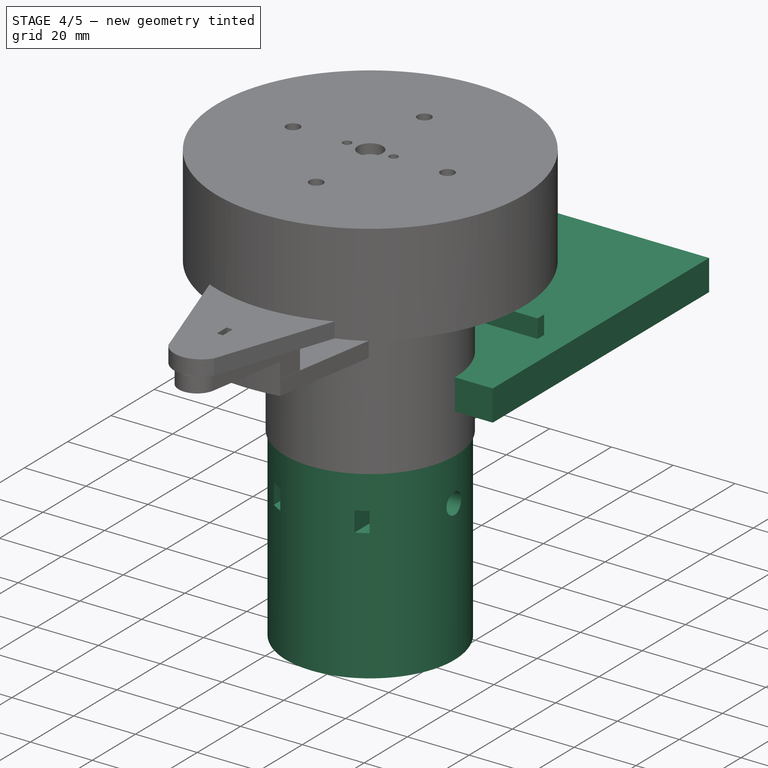
[diagram: stage 4 of 5 — iso view after this stage's code; geometry added in this stage tinted green]
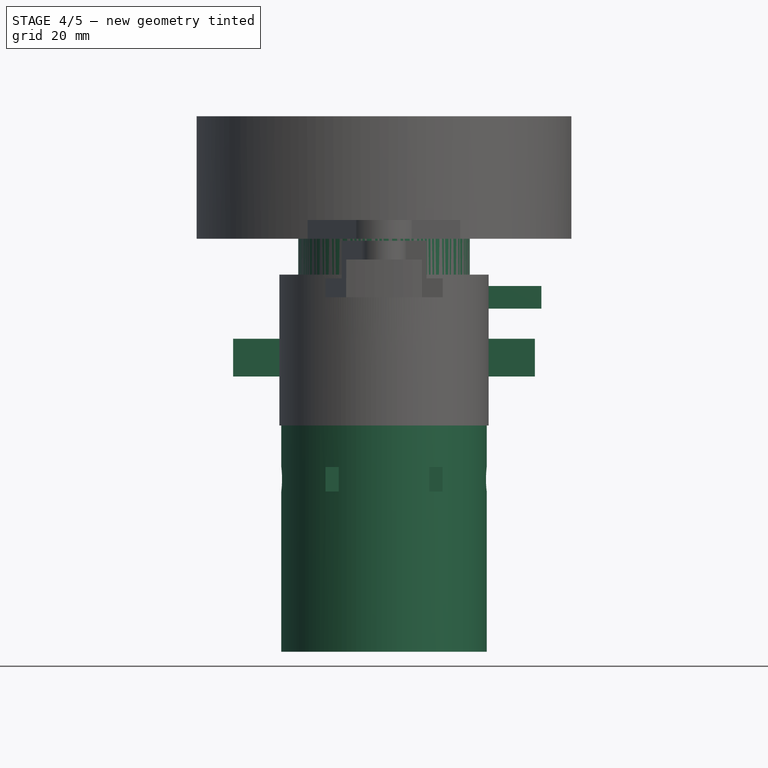
[diagram: stage 4 of 5 — front view after this stage's code; geometry added in this stage tinted green]
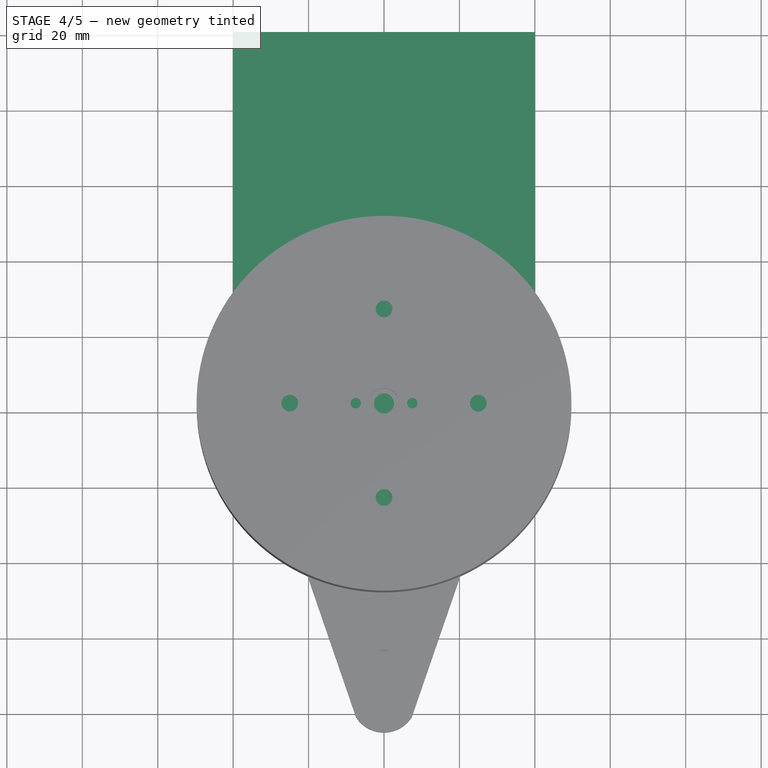
[diagram: stage 4 of 5 — top view after this stage's code; geometry added in this stage tinted green]
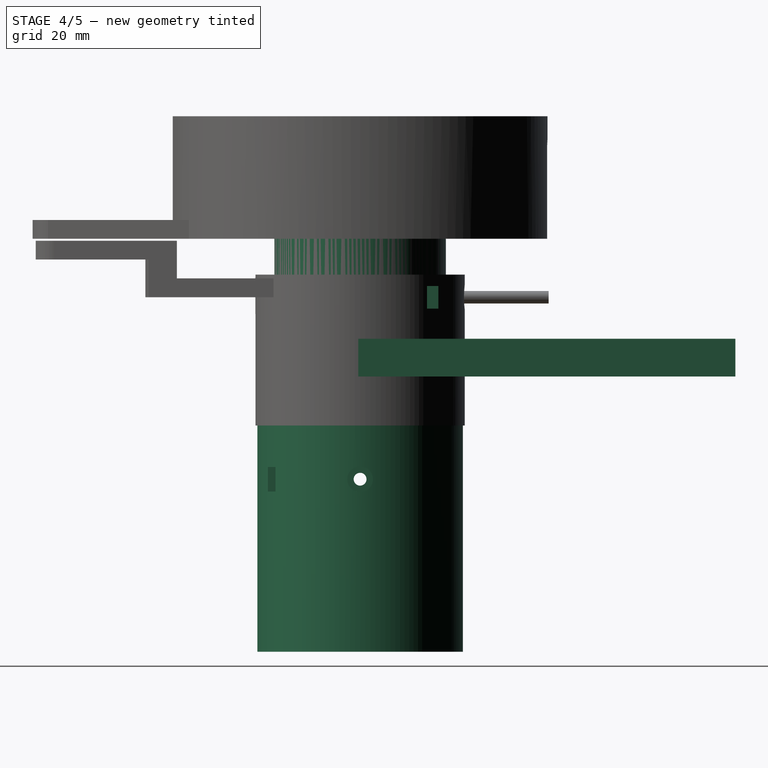
[diagram: stage 4 of 5 — right view after this stage's code; geometry added in this stage tinted green]
FEATURE [Spreadsheet::Sheet] Spreadsheet  label="Sheet"
  cells = A1='bearing_inside; B1(bearing_inside)==E1 - E4 * 2 + 0.9; D1='true_bearing_inside_diameter; E1=45; G1='case_mounting_screw_distance; H1(case_mounting_screw_distance)=25; J1='tripod_nut_width; K1(tripod_nut_width)=24; A2='bearing_outside; B2(bearing_outside)==E2 + E4 * 2; D2='true_bearing_outside_diameter; E2=85; G2='case_mounting_screw_size; H2(case_mounting_screw_size)=4.4; J2='tripod_nut_length; K2(tripod_nut_length)=27.2; A3='bearing_height; B3(bearing_height)=19; J3='tripod_nut_height; K3(tripod_nut_height)=14.2; A4='plug_lip; B4(plug_lip)=15; D4='margin; E4=0.2; G4='motor_securing_screw_size; H4(motor_securing_screw_size)=3.4; J4='tripod_screw_diameter; K4(tripod_screw_diameter)=16.2; A5='plug_height; B5(plug_height)=60; G5='motor_securing_nut_size; H5(motor_securing_nut_size)=6.5; J5='tripod_screw_length; K5(tripod_screw_length)=15; A6='plug_overlap; B6(plug_overlap)=5; D6='true_motor_shaft_diameter; E6(true_motor_shaft_diameter)=4; G6='motor_securing_nut_width; H6(motor_securing_nut_width)=3.5; A7='motor_shaft_diameter; B7(motor_shaft_diameter)==true_motor_shaft_diameter + 0.3; D7='true_motor_shaft_narrow; E7(true_motor_shaft_narrow)=3.5; J7='hall_effect_x; K7(hall_effect_x)=4.5; A8='motor_shaft_narrow; B8(motor_shaft_narrow)==true_motor_shaft_narrow + 0.3; C8(motor_shaft_slice_position)==motor_shaft_narrow - motor_shaft_diameter / 1.9; D8='(motor_shaft_slice_position); G8='mounting_pole_diameter; H8(mounting_pole_diameter)=17.4; J8='hall_effect_y; K8(hall_effect_y)=2; A9='motor_shaft_length; B9(motor_shaft_length)=15.6; J9='hall_effect_distance; K9(hall_effect_distance)=65; A10='motor_lip_diameter; B10(motor_lip_diameter)=7; G10='he_magnet_diameter; H10(he_magnet_diameter)=5.2; A11='motor_lip_height; B11(motor_lip_height)=3.2; G11='he_magnet_height; H11(he_magnet_height)=4.2; A12='base_thickness; B12(base_thickness)=5; A13='plug_to_base_gap; B13(plug_to_base_gap)=3; A14='motor_shaft_hole_depth; B14(motor_shaft_hole_depth)==motor_shaft_length + motor_lip_height - base_thickness - plug_to_base_gap; A15='lower_part_height; B15(lower_part_height)=40; A16='base_height; B16(base_height)==plug_to_base_gap + plug_height
FEATURE [Part::Cylinder] Cylinder  label="Cylinder_plug_inner"
  Angle = 360
  AttacherType = Attacher::AttachEngine3D
  FirstAngle = 0
  Height = 60
  Radius = 22.75
  SecondAngle = 0
  expr: Height = <<Sheet>>.plug_height
  expr: Radius = <<Sheet>>.bearing_inside / 2
FEATURE [Part::Cylinder] Cylinder001  label="Cylinder_plug_lip"
  Angle = 360
  AttacherType = Attacher::AttachEngine3D
  FirstAngle = 0
  Height = 15
  Placement = pos=(0,0,45) rot=(0,0,1;0rad)
  Radius = 27.75
  SecondAngle = 0
  expr: .Placement.Base.z = <<Sheet>>.plug_height - <<Sheet>>.plug_lip
  expr: Height = <<Sheet>>.plug_lip
  expr: Radius = <<Sheet>>.bearing_inside / 2 + <<Sheet>>.plug_overlap
FEATURE [Part::Box] Box002  label="CutCube001"
  AttacherType = Attacher::AttachEngine3D
  Height = 10
  Length = 80
  Placement = pos=(-40,-0.5,-1) rot=(0,0,1;0rad)
  Width = 100
FEATURE [Part::Box] Box003  label="Cube001"
  AttacherType = Attacher::AttachEngine3D
  Height = 6
  Length = 40
  Placement = pos=(1.725,17.75,17) rot=(1,0,0;0rad)
  Width = 3
  expr: .Placement.Base.y = <<Sheet>>.bearing_inside / 2 - 5
  expr: Height = 6
FEATURE [Part::RegularPolygon] RegularPolygon  label="Regular polygon"
  AttacherType = Attacher::AttachEngine3D
  Circumradius = 3.462
  Placement = pos=(0,0,0) rot=(1,0,0;1.5708rad)
  Polygon = 6
  expr: .Placement.Base.y = 0
FEATURE [Part::FeaturePython] Array  # Draft array (typed FeaturePython)
  AlwaysSyncPlacement = false
  Angle = 360
  ArrayType = 0
  Axis = (0,0,1)
  Base = -> RegularPolygon
  Center = (0,0,0)
  Count = 1
  ExpandArray = false
  Fuse = false
  IntervalAxis = (0,0,0)
  IntervalX = (100,0,0)
  IntervalY = (0,100,0)
  IntervalZ = (0,0,100)
  NumberCircles = 3
  NumberPolar = 5
  NumberX = 1
  NumberY = 1
  NumberZ = 1
  PlacementList = 1 placements: [(0,0,0)]
  RadialDistance = 50
  ScaleList = (1) [(1,1,1)]
  Symmetry = 1
  TangentialDistance = 25
FEATURE [Part::Extrusion] Extrude
  Base = -> Array
  Dir = (0,1,-2e-16)
  DirMode = 2
  FaceMakerClass = Part::FaceMakerBullseye
  LengthFwd = 3
  LengthRev = 0
  Placement = pos=(0,17.75,20) rot=(0,0,1;0rad)
  Solid = true
  Symmetric = false
  expr: .Placement.Base.y = <<Sheet>>.bearing_inside / 2 - 5
FEATURE [Part::MultiFuse] Fusion001
  Shapes = -> [Box003,Extrude]
FEATURE [Part::MultiFuse] Fusion002
  Shapes = -> [Cylinder005,Fusion001]
FEATURE [Part::Cut] Cut002  label="lower_part"
  Base = -> Cylinder004
  Tool = -> Fusion003
FEATURE [PartDesign::FeatureBase] BaseFeature002
  BaseFeature = -> Cut002
FEATURE [Sketcher::SketchObject] Sketch006
  FullyConstrained = true
  MapMode = 5
  Placement = pos=(0,0,-14) rot=(1,0,0;3.14159rad)
  Support = -> [BaseFeature002]
  expr: Constraints[1] = 54.5
  expr: Constraints[3] = Spreadsheet.mounting_pole_diameter
  sketch-geometry (2):
    g0: Circle CenterX=0 CenterY=0 CenterZ=0 NormalX=0 NormalY=0 NormalZ=1 AngleXU=0 Radius=27.25
    g1: Circle CenterX=0 CenterY=0 CenterZ=0 NormalX=0 NormalY=0 NormalZ=1 AngleXU=0 Radius=8.7
  constraints (4):
    c: Coincident(g0,g-1)
    c: Diameter(g0) = 54.5
    c: Coincident(g1,g0)
    c: Diameter(g1) = 17.4
FEATURE [PartDesign::Pad] Pad
  BaseFeature = -> BaseFeature002
  Direction = (0,0,-1)
  Length = 60
  Length2 = 10
  Profile = -> Sketch006
  ReferenceAxis = -> Sketch006 [N_Axis]
  Type = 0
  expr: Length = 60
FEATURE [Sketcher::SketchObject] Sketch007
  AttachmentOffset = pos=(0,0,28) rot=(0,0,1;0rad)
  FullyConstrained = true
  MapMode = 5
  Placement = pos=(0,-28,-6.2e-15) rot=(1,0,0;1.5708rad)
  Support = -> [XZ_Plane002]
  expr: Constraints[10] = 25
  expr: Constraints[8] = Spreadsheet.motor_securing_nut_width
  expr: Constraints[9] = Spreadsheet.motor_securing_nut_size
  sketch-geometry (4):
    g0: LineSegment StartX=12 StartY=-25 StartZ=0 EndX=15.5 EndY=-25 EndZ=0
    g1: LineSegment StartX=15.5 StartY=-25 StartZ=0 EndX=15.5 EndY=-31.5 EndZ=0
    g2: LineSegment StartX=15.5 StartY=-31.5 StartZ=0 EndX=12 EndY=-31.5 EndZ=0
    g3: LineSegment StartX=12 StartY=-31.5 StartZ=0 EndX=12 EndY=-25 EndZ=0
  constraints (12):
    c: Coincident(g0,g1)
    c: Coincident(g1,g2)
    c: Coincident(g2,g3)
    c: Coincident(g3,g0)
    c: Horizontal(g0)
    c: Horizontal(g2)
    c: Vertical(g1)
    c: Vertical(g3)
    c: DistanceX(g0,g0) = 3.5
    c: DistanceY(g1,g1) = 6.5
    c: DistanceY(g0,g-1) = 25
    c: DistanceX(g-1,g0) = 12
FEATURE [PartDesign::Pocket] Pocket007
  BaseFeature = -> Pad
  Direction = (0,1,2e-16)
  Length = 32.1
  Length2 = 5
  Profile = -> Sketch007
  ReferenceAxis = -> Sketch007 [N_Axis]
  Type = 0
FEATURE [Sketcher::SketchObject] Sketch008
  AttachmentOffset = pos=(0,0,28) rot=(0,0,1;0rad)
  FullyConstrained = true
  MapMode = 5
  Placement = pos=(28,-6.2e-15,6.2e-15) rot=(0.57735,0.57735,0.57735;2.0944rad)
  Support = -> [YZ_Plane002]
  expr: Constraints[1] = 25 + Spreadsheet.motor_securing_nut_size / 2
  expr: Constraints[2] = Spreadsheet.motor_securing_screw_size
  sketch-geometry (1):
    g0: Circle CenterX=0 CenterY=-28.25 CenterZ=0 NormalX=0 NormalY=0 NormalZ=1 AngleXU=0 Radius=1.7
  constraints (3):
    c: DistanceX(g0,g-1) = 0
    c: DistanceY(g0,g-1) = 28.25
    c: Diameter(g0) = 3.4
FEATURE [PartDesign::Pocket] Pocket008
  BaseFeature = -> Pocket007
  Direction = (-1,2e-16,-3e-16)
  Length = 30
  Length2 = 5
  Profile = -> Sketch008
  ReferenceAxis = -> Sketch008 [N_Axis]
  Type = 0
  expr: Length = 30
FEATURE [Sketcher::SketchObject] Sketch009
  AttachmentOffset = pos=(0,0,28) rot=(0,0,1;0rad)
  FullyConstrained = true
  MapMode = 5
  Placement = pos=(28,-6.2e-15,6.2e-15) rot=(0.57735,0.57735,0.57735;2.0944rad)
  Support = -> [YZ_Plane002]
  expr: Constraints[1] = 25 + Spreadsheet.motor_securing_nut_size / 2
  expr: Constraints[2] = Spreadsheet.motor_securing_screw_size * 2
  sketch-geometry (1):
    g0: Circle CenterX=0 CenterY=-28.25 CenterZ=0 NormalX=0 NormalY=0 NormalZ=1 AngleXU=0 Radius=3.4
  constraints (3):
    c: DistanceX(g0,g-1) = 0
    c: DistanceY(g0,g-1) = 28.25
    c: Diameter(g0) = 6.8
FEATURE [PartDesign::Pocket] Pocket009
  BaseFeature = -> Pocket008
  Direction = (-1,2e-16,-3e-16)
  Length = 10
  Length2 = 5
  Profile = -> Sketch009
  ReferenceAxis = -> Sketch009 [N_Axis]
  Type = 0
FEATURE [Sketcher::SketchObject] Sketch010
  FullyConstrained = true
  Placement = pos=(-28,0,0) rot=(0.57735,0.57735,0.57735;2.0944rad)
  expr: Constraints[0] = 25 + Spreadsheet.motor_securing_nut_size / 2
  expr: Constraints[2] = Spreadsheet.motor_securing_screw_size
  sketch-geometry (1):
    g0: Circle CenterX=0 CenterY=-28.25 CenterZ=0 NormalX=0 NormalY=0 NormalZ=1 AngleXU=0 Radius=1.7
  constraints (3):
    c: DistanceY(g0,g-1) = 28.25
    c: DistanceX(g0,g-1) = 0
    c: Diameter(g0) = 3.4
FEATURE [PartDesign::Pocket] Pocket010
  BaseFeature = -> Pocket009
  Direction = (-1,0,0)
  Length = 30
  Length2 = 5
  Profile = -> Sketch010
  ReferenceAxis = -> Sketch010 [N_Axis]
  Reversed = true
  Type = 0
FEATURE [Sketcher::SketchObject] Sketch011
  AttachmentOffset = pos=(0,0,-28) rot=(0,0,1;0rad)
  FullyConstrained = true
  MapMode = 5
  Placement = pos=(-28,6.2e-15,-6.2e-15) rot=(0.57735,0.57735,0.57735;2.0944rad)
  Support = -> [YZ_Plane002]
  expr: Constraints[0] = Spreadsheet.motor_securing_screw_size * 2
  expr: Constraints[1] = 0
  expr: Constraints[2] = 25 + Spreadsheet.motor_securing_nut_size / 2
  sketch-geometry (1):
    g0: Circle CenterX=0 CenterY=-28.25 CenterZ=0 NormalX=0 NormalY=0 NormalZ=1 AngleXU=0 Radius=3.4
  constraints (3):
    c: Diameter(g0) = 6.8
    c: DistanceX(g0,g-1) = 0
    c: DistanceY(g0,g-1) = 28.25
FEATURE [PartDesign::Pocket] Pocket011
  BaseFeature = -> Pocket010
  Direction = (-1,2e-16,-3e-16)
  Length = 10
  Length2 = 5
  Profile = -> Sketch011
  ReferenceAxis = -> Sketch011 [N_Axis]
  Reversed = true
  Type = 0
FEATURE [Sketcher::SketchObject] Sketch012
  AttachmentOffset = pos=(0,2,28) rot=(0,0,1;0rad)
  FullyConstrained = true
  MapMode = 5
  Placement = pos=(0,-28,2) rot=(1,0,0;1.5708rad)
  Support = -> [XZ_Plane002]
  expr: Constraints[10] = Spreadsheet.motor_securing_nut_width
  expr: Constraints[11] = Spreadsheet.motor_securing_nut_size
  expr: Constraints[9] = 27
  sketch-geometry (4):
    g0: LineSegment StartX=-15.5 StartY=-27 StartZ=0 EndX=-12 EndY=-27 EndZ=0
    g1: LineSegment StartX=-12 StartY=-27 StartZ=0 EndX=-12 EndY=-33.5 EndZ=0
    g2: LineSegment StartX=-12 StartY=-33.5 StartZ=0 EndX=-15.5 EndY=-33.5 EndZ=0
    g3: LineSegment StartX=-15.5 StartY=-33.5 StartZ=0 EndX=-15.5 EndY=-27 EndZ=0
  constraints (12):
    c: Coincident(g0,g1)
    c: Coincident(g1,g2)
    c: Coincident(g2,g3)
    c: Coincident(g3,g0)
    c: Horizontal(g0)
    c: Horizontal(g2)
    c: Vertical(g1)
    c: Vertical(g3)
    c: DistanceX(g0,g-1) = 12
    c: DistanceY(g0,g-1) = 27
    c: DistanceX(g0,g0) = 3.5
    c: DistanceY(g1,g1) = 6.5
FEATURE [PartDesign::Pocket] Pocket012
  BaseFeature = -> Pocket011
  Direction = (0,1,2e-16)
  Length = 32.1
  Length2 = 5
  Profile = -> Sketch012
  ReferenceAxis = -> Sketch012 [N_Axis]
  Type = 0
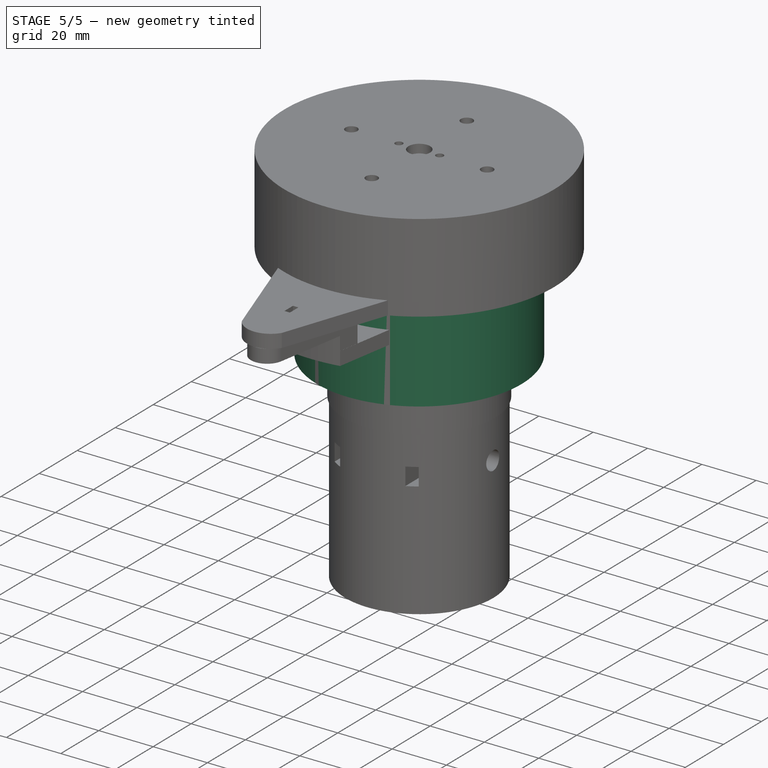
[diagram: stage 5 of 5 — iso view after this stage's code; geometry added in this stage tinted green]
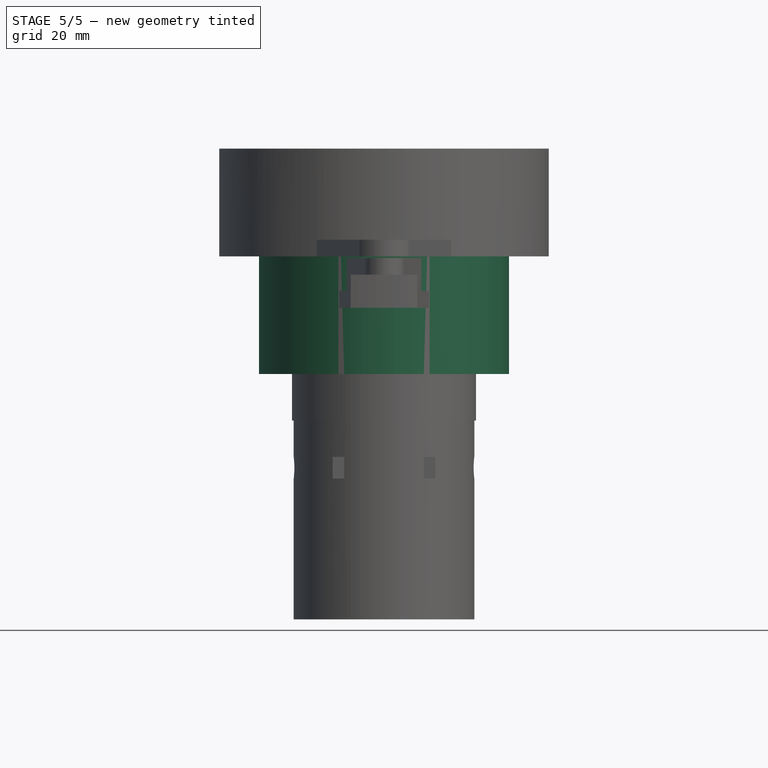
[diagram: stage 5 of 5 — front view after this stage's code; geometry added in this stage tinted green]
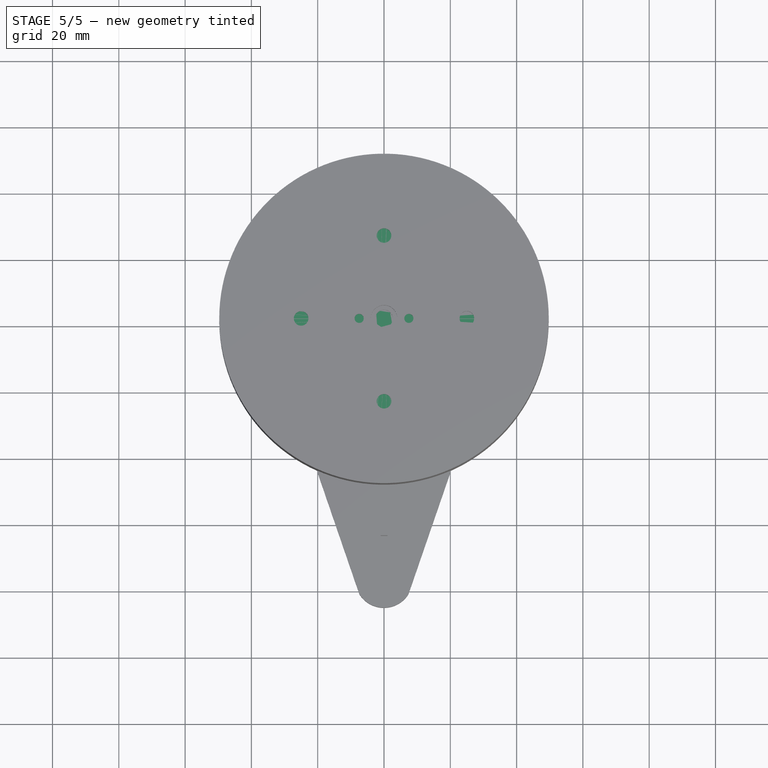
[diagram: stage 5 of 5 — top view after this stage's code; geometry added in this stage tinted green]
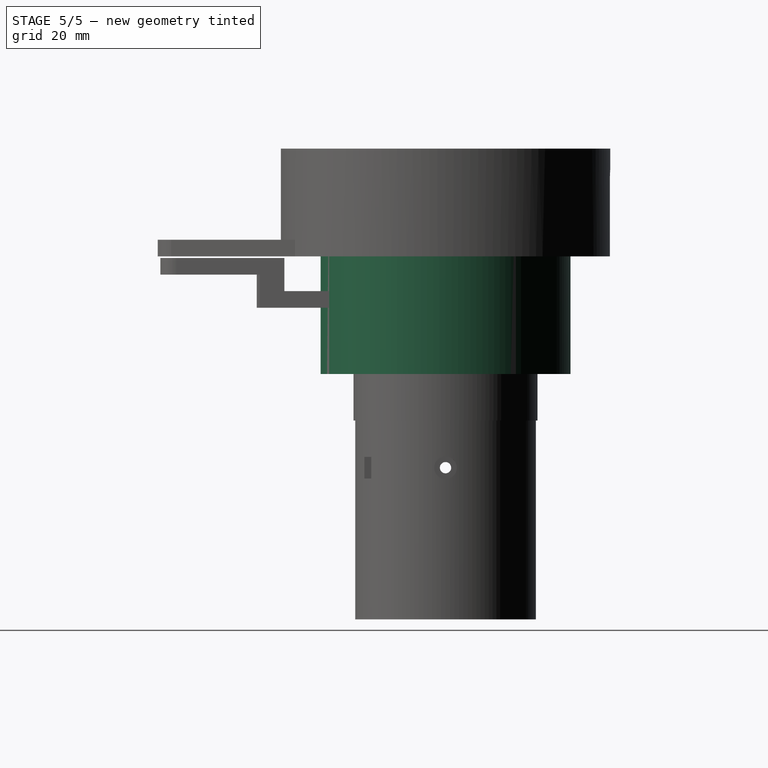
[diagram: stage 5 of 5 — right view after this stage's code; geometry added in this stage tinted green]
FEATURE [Part::Cylinder] Cylinder002  label="Cylinder_shaft_hole"
  Angle = 360
  AttacherType = Attacher::AttachEngine3D
  FirstAngle = 0
  Height = 10.8
  Radius = 2.15
  SecondAngle = 0
  expr: .Placement.Base.z = 0
  expr: Height = <<Sheet>>.motor_shaft_hole_depth
  expr: Radius = <<Sheet>>.motor_shaft_diameter / 2
FEATURE [Part::Box] Box  label="Cube"
  AttacherType = Attacher::AttachEngine3D
  Height = 10.8
  Length = 10
  Placement = pos=(-5,1.53684,0) rot=(0,0,1;0rad)
  Width = 10
  expr: .Placement.Base.y = <<Sheet>>.motor_shaft_slice_position
  expr: Height = <<Cylinder_shaft_hole>>.Height
FEATURE [Part::Cut] Cut  label="Motor_shaft_hole"
  Base = -> Cylinder002
  Placement = pos=(0,0,49.2) rot=(0,0,1;0rad)
  Tool = -> Box
  expr: .Placement.Base.z = <<Sheet>>.plug_height - <<Sheet>>.motor_shaft_hole_depth
FEATURE [Part::MultiFuse] Fusion
  Shapes = -> [Cylinder001,Cylinder]
FEATURE [Part::Cut] Cut001  label="plugwithoutcut"
  Base = -> Fusion
  Tool = -> Cut
FEATURE [Part::Cut] Cut003  label="plugwithoutbolt"
  Base = -> Cut001
  Tool = -> Box002
FEATURE [Part::Cut] Cut005  label="plug"
  Base = -> Cut003
  Tool = -> Fusion002
FEATURE [Part::FeaturePython] Array001  # Draft array (typed FeaturePython)
  AlwaysSyncPlacement = false
  Angle = 360
  ArrayType = 0
  Axis = (0,0,1)
  Base = -> Extrude
  Center = (0,0,0)
  Count = 1
  ExpandArray = false
  Fuse = false
  IntervalAxis = (0,0,0)
  IntervalX = (100,0,0)
  IntervalY = (0,100,0)
  IntervalZ = (0,0,100)
  NumberCircles = 3
  NumberPolar = 5
  NumberX = 1
  NumberY = 1
  NumberZ = 1
  Placement = pos=(0.5,0,0) rot=(0,0,1;0rad)
  PlacementList = 1 placements: [(0,17.75,20)]
  RadialDistance = 50
  ScaleList = (1) [(1,1,1)]
  Symmetry = 1
  TangentialDistance = 25
FEATURE [Part::Box] Box004  label="Cube002"
  AttacherType = Attacher::AttachEngine3D
  Height = 5.7
  Length = 40
  Placement = pos=(1.73,17.9,17.15) rot=(0,0,1;0rad)
  Width = 2.7
  expr: .Placement.Base.y = <<Sheet>>.bearing_inside / 2 - 5 + 0.15
FEATURE [Part::Cut] Cut006
  Base = -> Box004
  Tool = -> Array001
FEATURE [Part::MultiCommon] Common  label="BoltHoleCover"
  Shapes = -> [Cut003,Cut006]
FEATURE [Part::Cut] Cut007
  Base = -> Cylinder007
  Tool = -> Fusion005
FEATURE [Sketcher::SketchObject] Sketch002
  AttachmentOffset = pos=(0,-1,-60) rot=(0,0,1;0rad)
  FullyConstrained = false
  MapMode = 5
  Placement = pos=(0,60,-1) rot=(1,0,0;1.5708rad)
  Support = -> [XZ_Plane]
  expr: Constraints[0] = Spreadsheet.motor_securing_screw_size
  expr: Constraints[11] = 63 - Spreadsheet.motor_securing_screw_size
  expr: Constraints[8] = Spreadsheet.motor_securing_screw_size * 2
  expr: Constraints[9] = Spreadsheet.motor_securing_screw_size
  sketch-geometry (4):
    g0: ArcOfCircle CenterX=6.56025e-11 CenterY=59.6 CenterZ=0 NormalX=0 NormalY=0 NormalZ=1 AngleXU=0 Radius=3.4 StartAngle=6.28318 EndAngle=9.42478
    g1: LineSegment StartX=-3.4 StartY=59.6 StartZ=0 EndX=-3.4 EndY=0 EndZ=0
    g2: LineSegment StartX=-3.4 StartY=0 StartZ=0 EndX=3.4 EndY=0 EndZ=0
    g3: LineSegment StartX=3.4 StartY=59.6 StartZ=0 EndX=3.4 EndY=0 EndZ=0
  constraints (12):
    c: Radius(g0) = 3.4
    c: Coincident(g1,g0)
    c: Vertical(g1)
    c: Coincident(g2,g1)
    c: Horizontal(g2)
    c: Coincident(g3,g0)
    c: Coincident(g3,g2)
    c: Vertical(g3)
    c: DistanceX(g2,g2) = 6.8
    c: DistanceX(g1,g-1) = 3.4
    c: DistanceY(g-1,g1) = 0
    c: DistanceY(g1,g0) = 59.6
FEATURE [PartDesign::FeatureBase] BaseFeature001
  BaseFeature = -> Cut005
FEATURE [Sketcher::SketchObject] Sketch003
  FullyConstrained = true
  MapMode = 5
  Placement = pos=(0,0,0) rot=(1,0,0;1.5708rad)
  Support = -> [XZ_Plane001]
  expr: Constraints[0] = Spreadsheet.motor_securing_screw_size
  sketch-geometry (1):
    g0: Circle CenterX=0 CenterY=53 CenterZ=0 NormalX=0 NormalY=0 NormalZ=1 AngleXU=0 Radius=1.7
  constraints (3):
    c: Diameter(g0) = 3.4
    c: DistanceX(g-1,g0) = 0
    c: DistanceY(g-1,g0) = 53
FEATURE [PartDesign::Pocket] Pocket003
  BaseFeature = -> BaseFeature001
  Direction = (0,1,2e-16)
  Length = 100
  Length2 = 5
  Profile = -> Sketch003
  ReferenceAxis = -> Sketch003 [N_Axis]
  Type = 1
  expr: Length = 100
FEATURE [Sketcher::SketchObject] Sketch004
  AttachmentOffset = pos=(0,0,-28) rot=(0,0,1;0rad)
  FullyConstrained = true
  MapMode = 5
  Placement = pos=(0,28,6.2e-15) rot=(1,0,0;1.5708rad)
  Support = -> [XZ_Plane001]
  expr: Constraints[0] = Spreadsheet.motor_securing_screw_size * 2
  sketch-geometry (1):
    g0: Circle CenterX=0 CenterY=53 CenterZ=0 NormalX=0 NormalY=0 NormalZ=1 AngleXU=0 Radius=3.4
  constraints (3):
    c: Diameter(g0) = 6.8
    c: DistanceX(g-1,g0) = 0
    c: DistanceY(g-1,g0) = 53
FEATURE [PartDesign::Pocket] Pocket004
  BaseFeature = -> Pocket003
  Direction = (0,1,2e-16)
  Length = 20
  Length2 = 5
  Profile = -> Sketch004
  ReferenceAxis = -> Sketch004 [N_Axis]
  Reversed = true
  Type = 0
FEATURE [Sketcher::SketchObject] Sketch005
  FullyConstrained = true
  Placement = pos=(28,0,0) rot=(0.57735,0.57735,0.57735;2.0944rad)
  expr: Constraints[11] = 53 - Spreadsheet.motor_securing_nut_size / 2
  expr: Constraints[8] = Spreadsheet.motor_securing_nut_width
  expr: Constraints[9] = Spreadsheet.motor_securing_nut_size
  sketch-geometry (4):
    g0: LineSegment StartX=3 StartY=56.25 StartZ=0 EndX=6.5 EndY=56.25 EndZ=0
    g1: LineSegment StartX=6.5 StartY=56.25 StartZ=0 EndX=6.5 EndY=49.75 EndZ=0
    g2: LineSegment StartX=6.5 StartY=49.75 StartZ=0 EndX=3 EndY=49.75 EndZ=0
    g3: LineSegment StartX=3 StartY=49.75 StartZ=0 EndX=3 EndY=56.25 EndZ=0
  constraints (12):
    c: Coincident(g0,g1)
    c: Coincident(g1,g2)
    c: Coincident(g2,g3)
    c: Coincident(g3,g0)
    c: Horizontal(g0)
    c: Horizontal(g2)
    c: Vertical(g1)
    c: Vertical(g3)
    c: DistanceX(g0,g0) = 3.5
    c: DistanceY(g1,g1) = 6.5
    c: DistanceX(g-1,g2) = 3
    c: DistanceY(g-1,g2) = 49.75
FEATURE [PartDesign::Pocket] Pocket005
  BaseFeature = -> Pocket004
  Direction = (-1,0,0)
  Length = 32.1
  Length2 = 5
  Profile = -> Sketch005
  ReferenceAxis = -> Sketch005 [N_Axis]
  Type = 0
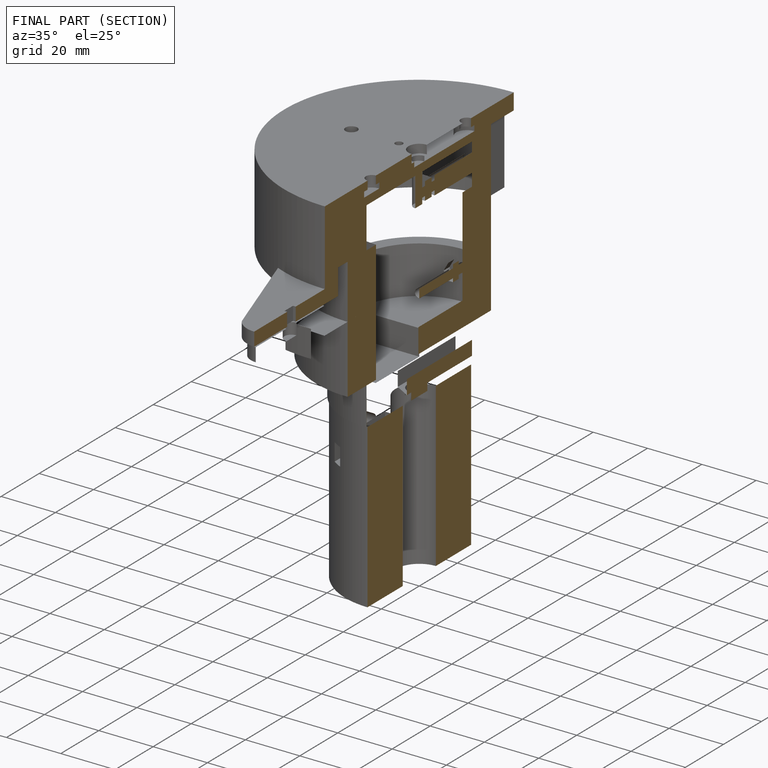
[diagram: finished part — half-section view (interior)]
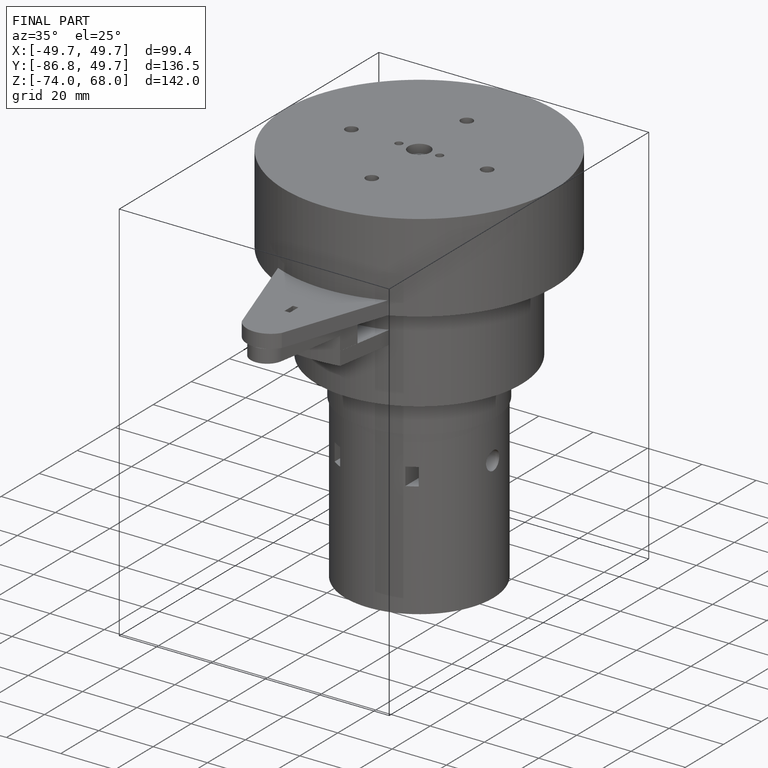
[diagram: finished part — iso view with bounding-box wireframe]
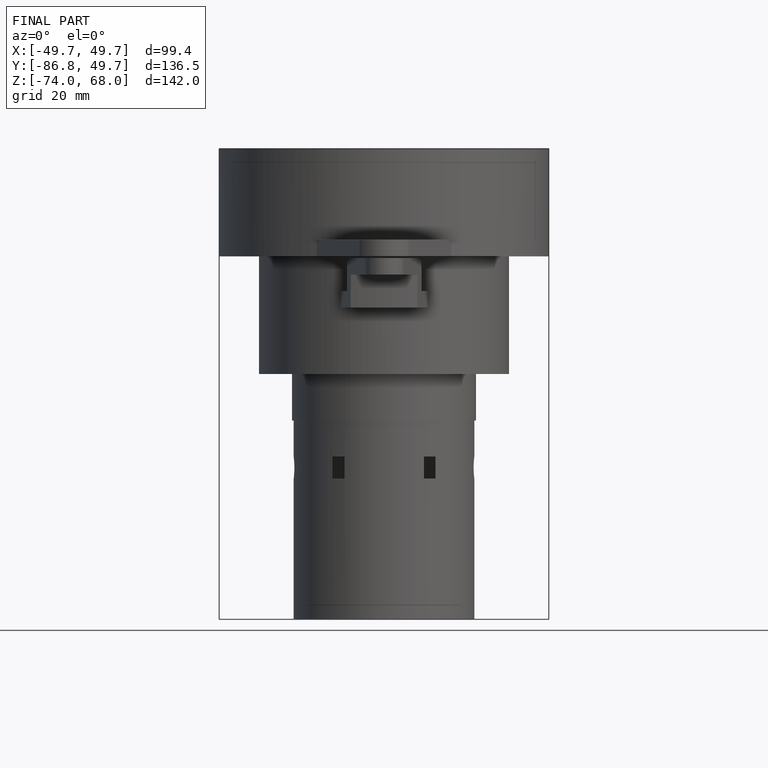
[diagram: finished part — front view with bounding-box wireframe]
